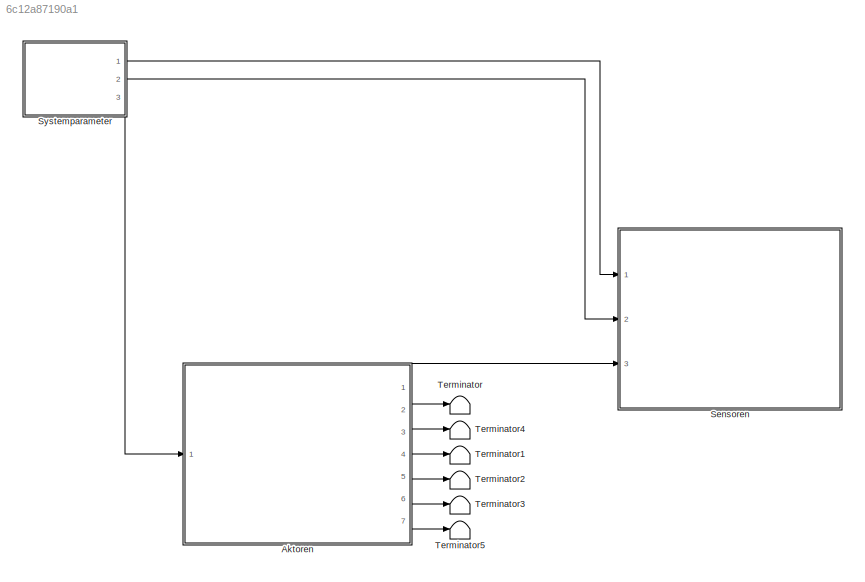
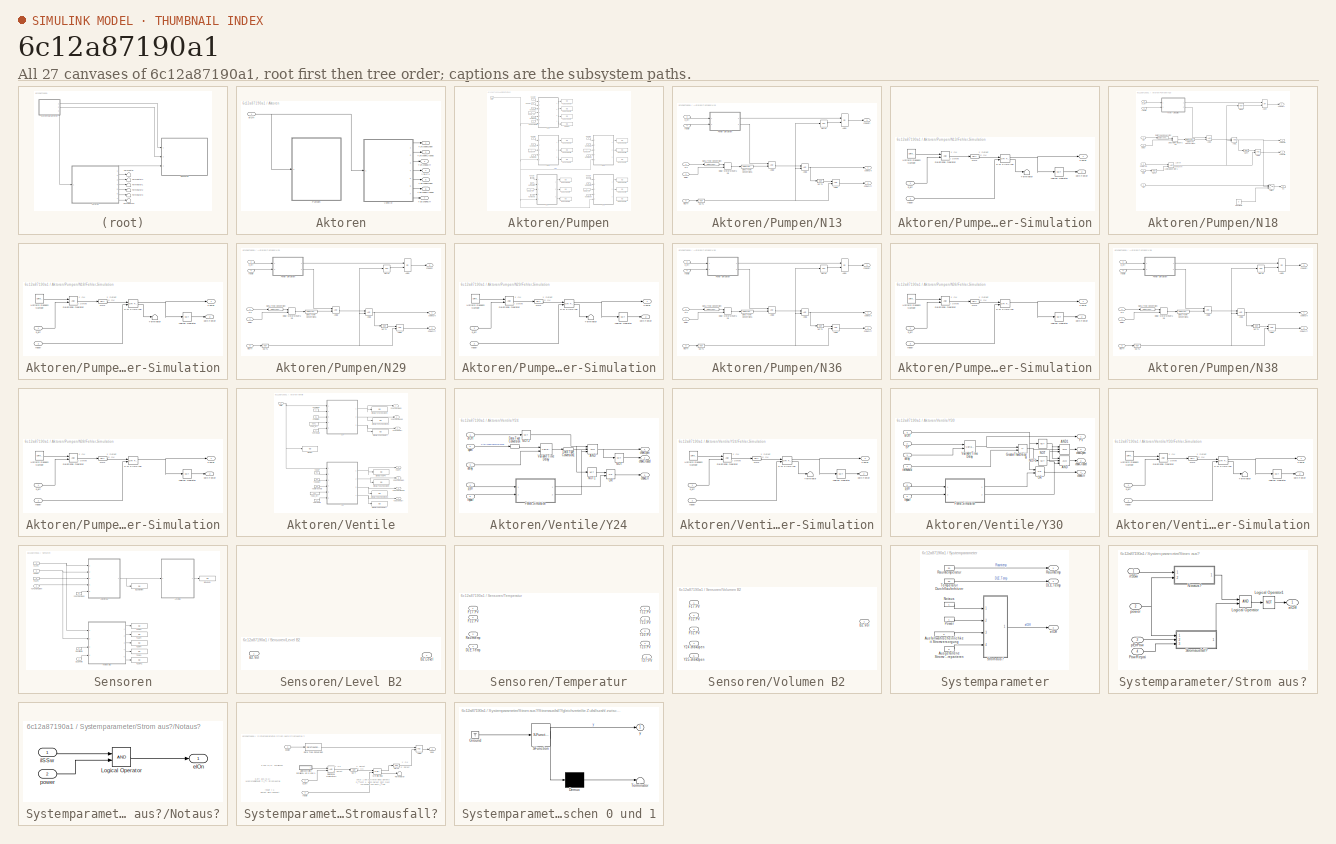
[diagram: thumbnail index - all 27 canvases of the model, root first then tree order]
MODEL slx_6c12a87190a1
KIND model
CONFIG AbsTol = auto
CONFIG EnableMultiTasking = on
CONFIG FixedStep = 1.0
CONFIG MaxStep = auto
CONFIG MinStep = auto
CONFIG RelTol = 1e-3
CONFIG SampleTimeConstraint = Unconstrained
CONFIG SolverName = ode5
CONFIG StartTime = 0.0
CONFIG StopTime = inf
BLOCK [SubSystem] Aktoren
  Ports = [1, 7]
  RequestExecContextInheritance = off
  TreatAsAtomicUnit = on
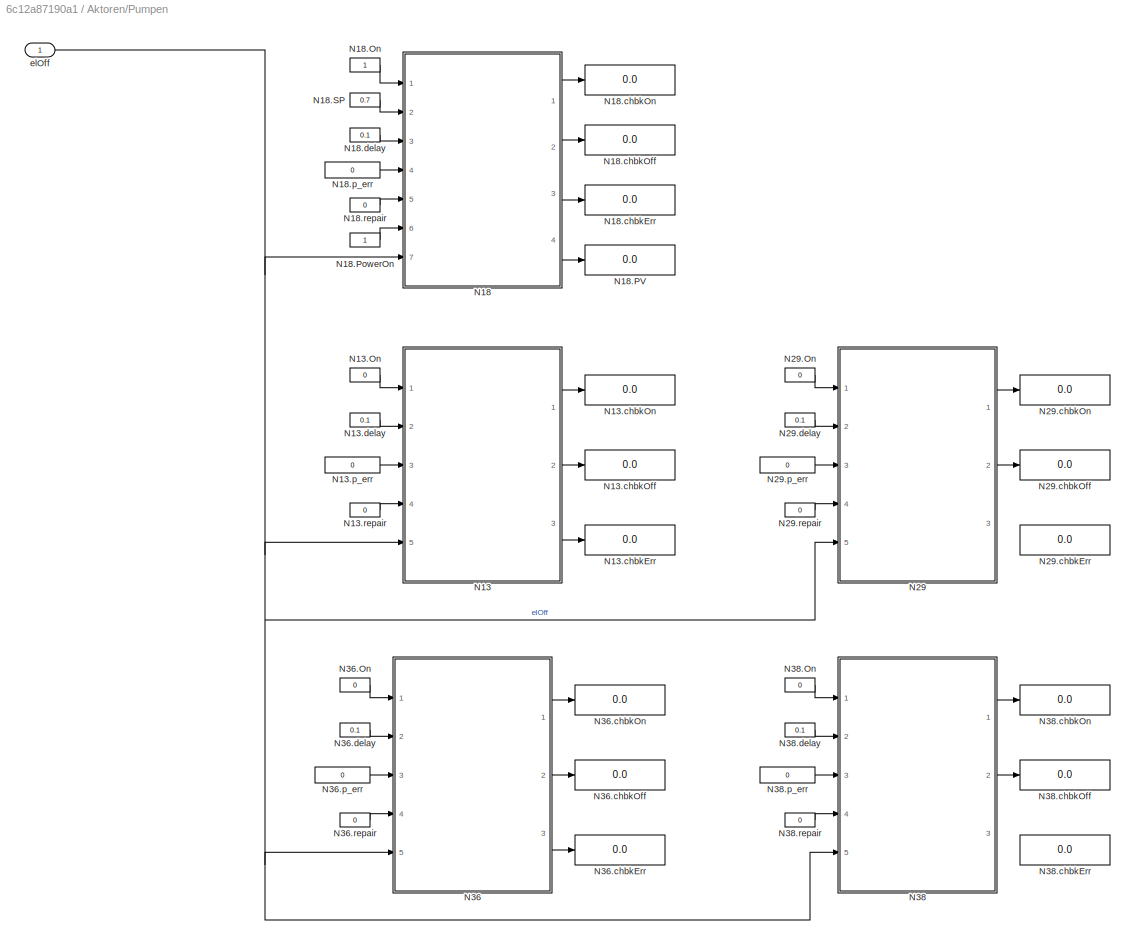
BLOCK [SubSystem] Aktoren/Pumpen
  Ports = [1]
  RequestExecContextInheritance = off
  TreatAsAtomicUnit = on
BLOCK [SubSystem] Aktoren/Pumpen/N13
  Ports = [5, 3]
  RequestExecContextInheritance = off
BLOCK [Constant] Aktoren/Pumpen/N13.On
  OutDataTypeStr = boolean
  Value = 0
BLOCK [Display] Aktoren/Pumpen/N13.chbkErr
  Decimation = 1
  Ports = [1]
BLOCK [Display] Aktoren/Pumpen/N13.chbkOff
  Decimation = 1
  Ports = [1]
BLOCK [Display] Aktoren/Pumpen/N13.chbkOn
  Decimation = 1
  Ports = [1]
BLOCK [Constant] Aktoren/Pumpen/N13.delay
  OutDataTypeStr = double
  Value = 0.1
BLOCK [Constant] Aktoren/Pumpen/N13.p_err
  OutDataTypeStr = double
  Value = 0
BLOCK [Constant] Aktoren/Pumpen/N13.repair
  OutDataTypeStr = boolean
  Value = 0
BLOCK [Logic] Aktoren/Pumpen/N13/AND1
  AllPortsSameDT = off
  OutDataTypeStr = boolean
  Ports = [2, 1]
BLOCK [Logic] Aktoren/Pumpen/N13/AND2
  AllPortsSameDT = off
  OutDataTypeStr = boolean
  Ports = [2, 1]
BLOCK [Logic] Aktoren/Pumpen/N13/AND3
  AllPortsSameDT = off
  OutDataTypeStr = boolean
  Ports = [2, 1]
BLOCK [Logic] Aktoren/Pumpen/N13/AND4
  AllPortsSameDT = off
  Operator = OR
  OutDataTypeStr = boolean
  Ports = [2, 1]
BLOCK [DataTypeConversion] Aktoren/Pumpen/N13/Data Type Conversion
  NameLocation = top
  OutDataTypeStr = double
  RndMeth = Floor
  SaturateOnIntegerOverflow = off
BLOCK [DataTypeConversion] Aktoren/Pumpen/N13/Data Type Conversion1
  OutDataTypeStr = boolean
  RndMeth = Floor
  SaturateOnIntegerOverflow = off
BLOCK [VariableTransportDelay] Aktoren/Pumpen/N13/Delay Motorsteuerung
  FixedBuffer = on
  MaximumDelay = 10
  Ports = [2, 1]
BLOCK [SubSystem] Aktoren/Pumpen/N13/Fehler-Simulation
  Ports = [2, 2]
  RequestExecContextInheritance = off
  TreatAsAtomicUnit = on
BLOCK [Outport] Aktoren/Pumpen/N13/Fehler-Simulation/Fehler
  OutDataTypeStr = boolean
BLOCK [Logic] Aktoren/Pumpen/N13/Fehler-Simulation/Logical Operator
  AllPortsSameDT = off
  Operator = NOT
  OutDataTypeStr = boolean
  Ports = [1, 1]
BLOCK [Logic] Aktoren/Pumpen/N13/Fehler-Simulation/NOT
  AllPortsSameDT = off
  Operator = NOT
  OutDataTypeStr = boolean
  Ports = [1, 1]
BLOCK [RelationalOperator] Aktoren/Pumpen/N13/Fehler-Simulation/Relational Operator
  InputSameDT = off
  OutDataTypeStr = boolean
  Ports = [2, 1]
BLOCK [Reference] Aktoren/Pumpen/N13/Fehler-Simulation/S-R Flip-Flop  REF=simulink_extras/Flip Flops/S-R
Flip-Flop
  Ports = [2, 2]
  SourceBlock = simulink_extras/Flip Flops/S-R\nFlip-Flop
  SourceProductBaseCode = SL
  SourceType = SRFlipFlop
BLOCK [Terminator] Aktoren/Pumpen/N13/Fehler-Simulation/Terminator
BLOCK [UniformRandomNumber] Aktoren/Pumpen/N13/Fehler-Simulation/Uniform Random Number
  Minimum = 0
  SampleTime = 1
  Seed = 1
BLOCK [Outport] Aktoren/Pumpen/N13/Fehler-Simulation/kein Fehler
  OutDataTypeStr = boolean
  Port = 2
BLOCK [Inport] Aktoren/Pumpen/N13/Fehler-Simulation/p_err
  OutDataTypeStr = double
BLOCK [Inport] Aktoren/Pumpen/N13/Fehler-Simulation/repair
  OutDataTypeStr = boolean
  Port = 2
BLOCK [Logic] Aktoren/Pumpen/N13/NOT1
  AllPortsSameDT = off
  Operator = NOT
  OutDataTypeStr = boolean
  Ports = [1, 1]
BLOCK [Logic] Aktoren/Pumpen/N13/NOT2
  AllPortsSameDT = off
  Operator = NOT
  OutDataTypeStr = boolean
  Ports = [1, 1]
BLOCK [Logic] Aktoren/Pumpen/N13/NOT4
  AllPortsSameDT = off
  Operator = NOT
  OutDataTypeStr = boolean
  Ports = [1, 1]
BLOCK [Inport] Aktoren/Pumpen/N13/On
  OutDataTypeStr = boolean
BLOCK [Outport] Aktoren/Pumpen/N13/chbkErr
  OutDataTypeStr = boolean
  Port = 3
BLOCK [Outport] Aktoren/Pumpen/N13/chbkOff
  OutDataTypeStr = boolean
  Port = 2
BLOCK [Outport] Aktoren/Pumpen/N13/chbkOn
  OutDataTypeStr = boolean
BLOCK [Inport] Aktoren/Pumpen/N13/delay
  OutDataTypeStr = double
  Port = 2
BLOCK [Inport] Aktoren/Pumpen/N13/elOff
  OutDataTypeStr = boolean
  Port = 5
BLOCK [Inport] Aktoren/Pumpen/N13/p_err
  OutDataTypeStr = double
  Port = 3
BLOCK [Inport] Aktoren/Pumpen/N13/repair
  OutDataTypeStr = boolean
  Port = 4
BLOCK [SubSystem] Aktoren/Pumpen/N18
  Ports = [7, 4]
  RequestExecContextInheritance = off
BLOCK [Constant] Aktoren/Pumpen/N18.On
  OutDataTypeStr = boolean
BLOCK [Display] Aktoren/Pumpen/N18.PV
  Decimation = 1
  Ports = [1]
BLOCK [Constant] Aktoren/Pumpen/N18.PowerOn
  OutDataTypeStr = boolean
BLOCK [Constant] Aktoren/Pumpen/N18.SP
  OutDataTypeStr = double
  Value = 0.7
BLOCK [Display] Aktoren/Pumpen/N18.chbkErr
  Decimation = 1
  Ports = [1]
BLOCK [Display] Aktoren/Pumpen/N18.chbkOff
  Decimation = 1
  Ports = [1]
BLOCK [Display] Aktoren/Pumpen/N18.chbkOn
  Decimation = 1
  Ports = [1]
BLOCK [Constant] Aktoren/Pumpen/N18.delay
  OutDataTypeStr = double
  Value = 0.1
BLOCK [Constant] Aktoren/Pumpen/N18.p_err
  OutDataTypeStr = double
  Value = 0
BLOCK [Constant] Aktoren/Pumpen/N18.repair
  OutDataTypeStr = boolean
  Value = 0
BLOCK [Logic] Aktoren/Pumpen/N18/AND1
  AllPortsSameDT = off
  OutDataTypeStr = boolean
  Ports = [2, 1]
BLOCK [Logic] Aktoren/Pumpen/N18/AND2
  AllPortsSameDT = off
  OutDataTypeStr = boolean
  Ports = [2, 1]
BLOCK [Logic] Aktoren/Pumpen/N18/AND3
  AllPortsSameDT = off
  OutDataTypeStr = boolean
  Ports = [2, 1]
BLOCK [Logic] Aktoren/Pumpen/N18/AND4
  AllPortsSameDT = off
  Operator = OR
  OutDataTypeStr = boolean
  Ports = [2, 1]
BLOCK [Constant] Aktoren/Pumpen/N18/Constant1
  Value = 0
BLOCK [DataTypeConversion] Aktoren/Pumpen/N18/Data Type Conversion
  NameLocation = top
  OutDataTypeStr = double
  RndMeth = Floor
  SaturateOnIntegerOverflow = off
BLOCK [DataTypeConversion] Aktoren/Pumpen/N18/Data Type Conversion1
  OutDataTypeStr = boolean
  RndMeth = Floor
  SaturateOnIntegerOverflow = off
BLOCK [VariableTransportDelay] Aktoren/Pumpen/N18/Delay Motorsteuerung
  FixedBuffer = on
  MaximumDelay = 10
  Ports = [2, 1]
BLOCK [SubSystem] Aktoren/Pumpen/N18/Fehler-Simulation
  Ports = [2, 2]
  RequestExecContextInheritance = off
  TreatAsAtomicUnit = on
BLOCK [Outport] Aktoren/Pumpen/N18/Fehler-Simulation/Fehler
  OutDataTypeStr = boolean
BLOCK [Logic] Aktoren/Pumpen/N18/Fehler-Simulation/Logical Operator
  AllPortsSameDT = off
  Operator = NOT
  OutDataTypeStr = boolean
  Ports = [1, 1]
BLOCK [Logic] Aktoren/Pumpen/N18/Fehler-Simulation/NOT
  AllPortsSameDT = off
  Operator = NOT
  OutDataTypeStr = boolean
  Ports = [1, 1]
BLOCK [RelationalOperator] Aktoren/Pumpen/N18/Fehler-Simulation/Relational Operator
  InputSameDT = off
  OutDataTypeStr = boolean
  Ports = [2, 1]
BLOCK [Reference] Aktoren/Pumpen/N18/Fehler-Simulation/S-R Flip-Flop  REF=simulink_extras/Flip Flops/S-R
Flip-Flop
  Ports = [2, 2]
  SourceBlock = simulink_extras/Flip Flops/S-R\nFlip-Flop
  SourceProductBaseCode = SL
  SourceType = SRFlipFlop
BLOCK [Terminator] Aktoren/Pumpen/N18/Fehler-Simulation/Terminator
BLOCK [UniformRandomNumber] Aktoren/Pumpen/N18/Fehler-Simulation/Uniform Random Number
  Minimum = 0
  SampleTime = 1
  Seed = 1
BLOCK [Outport] Aktoren/Pumpen/N18/Fehler-Simulation/kein Fehler
  OutDataTypeStr = boolean
  Port = 2
BLOCK [Inport] Aktoren/Pumpen/N18/Fehler-Simulation/p_err
  OutDataTypeStr = double
BLOCK [Inport] Aktoren/Pumpen/N18/Fehler-Simulation/repair
  OutDataTypeStr = boolean
  Port = 2
BLOCK [Logic] Aktoren/Pumpen/N18/Logical Operator1
  AllPortsSameDT = off
  OutDataTypeStr = boolean
  Ports = [2, 1]
BLOCK [Logic] Aktoren/Pumpen/N18/NOT1
  AllPortsSameDT = off
  Operator = NOT
  OutDataTypeStr = boolean
  Ports = [1, 1]
BLOCK [Logic] Aktoren/Pumpen/N18/NOT2
  AllPortsSameDT = off
  Operator = NOT
  OutDataTypeStr = boolean
  Ports = [1, 1]
BLOCK [Logic] Aktoren/Pumpen/N18/NOT4
  AllPortsSameDT = off
  Operator = NOT
  OutDataTypeStr = boolean
  Ports = [1, 1]
BLOCK [Inport] Aktoren/Pumpen/N18/On
  OutDataTypeStr = boolean
BLOCK [Outport] Aktoren/Pumpen/N18/PV
  OutDataTypeStr = double
  Port = 4
BLOCK [Inport] Aktoren/Pumpen/N18/PowerOn
  OutDataTypeStr = boolean
  Port = 6
BLOCK [Inport] Aktoren/Pumpen/N18/SP
  OutDataTypeStr = double
  Port = 2
BLOCK [Switch] Aktoren/Pumpen/N18/Switch
  InputSameDT = off
  SaturateOnIntegerOverflow = off
  Threshold = 0.5
BLOCK [Outport] Aktoren/Pumpen/N18/chbkErr
  OutDataTypeStr = boolean
  Port = 3
BLOCK [Outport] Aktoren/Pumpen/N18/chbkOff
  OutDataTypeStr = boolean
  Port = 2
BLOCK [Outport] Aktoren/Pumpen/N18/chbkOn
  OutDataTypeStr = boolean
BLOCK [Inport] Aktoren/Pumpen/N18/delay
  OutDataTypeStr = double
  Port = 3
BLOCK [Inport] Aktoren/Pumpen/N18/elOff
  OutDataTypeStr = boolean
  Port = 7
BLOCK [Inport] Aktoren/Pumpen/N18/p_err
  OutDataTypeStr = double
  Port = 4
BLOCK [Inport] Aktoren/Pumpen/N18/repair
  OutDataTypeStr = boolean
  Port = 5
BLOCK [SubSystem] Aktoren/Pumpen/N29
  Ports = [5, 3]
  RequestExecContextInheritance = off
BLOCK [Constant] Aktoren/Pumpen/N29.On
  OutDataTypeStr = boolean
  Value = 0
BLOCK [Display] Aktoren/Pumpen/N29.chbkErr
  Decimation = 1
  Ports = [1]
BLOCK [Display] Aktoren/Pumpen/N29.chbkOff
  Decimation = 1
  Ports = [1]
BLOCK [Display] Aktoren/Pumpen/N29.chbkOn
  Decimation = 1
  Ports = [1]
BLOCK [Constant] Aktoren/Pumpen/N29.delay
  OutDataTypeStr = double
  Value = 0.1
BLOCK [Constant] Aktoren/Pumpen/N29.p_err
  OutDataTypeStr = double
  Value = 0
BLOCK [Constant] Aktoren/Pumpen/N29.repair
  OutDataTypeStr = boolean
  Value = 0
BLOCK [Logic] Aktoren/Pumpen/N29/AND1
  AllPortsSameDT = off
  OutDataTypeStr = boolean
  Ports = [2, 1]
BLOCK [Logic] Aktoren/Pumpen/N29/AND2
  AllPortsSameDT = off
  OutDataTypeStr = boolean
  Ports = [2, 1]
BLOCK [Logic] Aktoren/Pumpen/N29/AND3
  AllPortsSameDT = off
  OutDataTypeStr = boolean
  Ports = [2, 1]
BLOCK [Logic] Aktoren/Pumpen/N29/AND4
  AllPortsSameDT = off
  Operator = OR
  OutDataTypeStr = boolean
  Ports = [2, 1]
BLOCK [DataTypeConversion] Aktoren/Pumpen/N29/Data Type Conversion
  NameLocation = top
  OutDataTypeStr = double
  RndMeth = Floor
  SaturateOnIntegerOverflow = off
BLOCK [DataTypeConversion] Aktoren/Pumpen/N29/Data Type Conversion1
  OutDataTypeStr = boolean
  RndMeth = Floor
  SaturateOnIntegerOverflow = off
BLOCK [VariableTransportDelay] Aktoren/Pumpen/N29/Delay Motorsteuerung
  FixedBuffer = on
  MaximumDelay = 10
  Ports = [2, 1]
BLOCK [SubSystem] Aktoren/Pumpen/N29/Fehler-Simulation
  Ports = [2, 2]
  RequestExecContextInheritance = off
  TreatAsAtomicUnit = on
BLOCK [Outport] Aktoren/Pumpen/N29/Fehler-Simulation/Fehler
  OutDataTypeStr = boolean
BLOCK [Logic] Aktoren/Pumpen/N29/Fehler-Simulation/Logical Operator
  AllPortsSameDT = off
  Operator = NOT
  OutDataTypeStr = boolean
  Ports = [1, 1]
BLOCK [Logic] Aktoren/Pumpen/N29/Fehler-Simulation/NOT
  AllPortsSameDT = off
  Operator = NOT
  OutDataTypeStr = boolean
  Ports = [1, 1]
BLOCK [RelationalOperator] Aktoren/Pumpen/N29/Fehler-Simulation/Relational Operator
  InputSameDT = off
  OutDataTypeStr = boolean
  Ports = [2, 1]
BLOCK [Reference] Aktoren/Pumpen/N29/Fehler-Simulation/S-R Flip-Flop  REF=simulink_extras/Flip Flops/S-R
Flip-Flop
  Ports = [2, 2]
  SourceBlock = simulink_extras/Flip Flops/S-R\nFlip-Flop
  SourceProductBaseCode = SL
  SourceType = SRFlipFlop
BLOCK [Terminator] Aktoren/Pumpen/N29/Fehler-Simulation/Terminator
BLOCK [UniformRandomNumber] Aktoren/Pumpen/N29/Fehler-Simulation/Uniform Random Number
  Minimum = 0
  SampleTime = 1
  Seed = 1
BLOCK [Outport] Aktoren/Pumpen/N29/Fehler-Simulation/kein Fehler
  OutDataTypeStr = boolean
  Port = 2
BLOCK [Inport] Aktoren/Pumpen/N29/Fehler-Simulation/p_err
  OutDataTypeStr = double
BLOCK [Inport] Aktoren/Pumpen/N29/Fehler-Simulation/repair
  OutDataTypeStr = boolean
  Port = 2
BLOCK [Logic] Aktoren/Pumpen/N29/NOT1
  AllPortsSameDT = off
  Operator = NOT
  OutDataTypeStr = boolean
  Ports = [1, 1]
BLOCK [Logic] Aktoren/Pumpen/N29/NOT2
  AllPortsSameDT = off
  Operator = NOT
  OutDataTypeStr = boolean
  Ports = [1, 1]
BLOCK [Logic] Aktoren/Pumpen/N29/NOT4
  AllPortsSameDT = off
  Operator = NOT
  OutDataTypeStr = boolean
  Ports = [1, 1]
BLOCK [Inport] Aktoren/Pumpen/N29/On
  OutDataTypeStr = boolean
BLOCK [Outport] Aktoren/Pumpen/N29/chbkErr
  OutDataTypeStr = boolean
  Port = 3
BLOCK [Outport] Aktoren/Pumpen/N29/chbkOff
  OutDataTypeStr = boolean
  Port = 2
BLOCK [Outport] Aktoren/Pumpen/N29/chbkOn
  OutDataTypeStr = boolean
BLOCK [Inport] Aktoren/Pumpen/N29/delay
  OutDataTypeStr = double
  Port = 2
BLOCK [Inport] Aktoren/Pumpen/N29/elOff
  OutDataTypeStr = boolean
  Port = 5
BLOCK [Inport] Aktoren/Pumpen/N29/p_err
  OutDataTypeStr = double
  Port = 3
BLOCK [Inport] Aktoren/Pumpen/N29/repair
  OutDataTypeStr = boolean
  Port = 4
BLOCK [SubSystem] Aktoren/Pumpen/N36
  Ports = [5, 3]
  RequestExecContextInheritance = off
BLOCK [Constant] Aktoren/Pumpen/N36.On
  OutDataTypeStr = boolean
  Value = 0
BLOCK [Display] Aktoren/Pumpen/N36.chbkErr
  Decimation = 1
  Ports = [1]
BLOCK [Display] Aktoren/Pumpen/N36.chbkOff
  Decimation = 1
  Ports = [1]
BLOCK [Display] Aktoren/Pumpen/N36.chbkOn
  Decimation = 1
  Ports = [1]
BLOCK [Constant] Aktoren/Pumpen/N36.delay
  OutDataTypeStr = double
  Value = 0.1
BLOCK [Constant] Aktoren/Pumpen/N36.p_err
  OutDataTypeStr = double
  Value = 0
BLOCK [Constant] Aktoren/Pumpen/N36.repair
  OutDataTypeStr = boolean
  Value = 0
BLOCK [Logic] Aktoren/Pumpen/N36/AND1
  AllPortsSameDT = off
  OutDataTypeStr = boolean
  Ports = [2, 1]
BLOCK [Logic] Aktoren/Pumpen/N36/AND2
  AllPortsSameDT = off
  OutDataTypeStr = boolean
  Ports = [2, 1]
BLOCK [Logic] Aktoren/Pumpen/N36/AND3
  AllPortsSameDT = off
  OutDataTypeStr = boolean
  Ports = [2, 1]
BLOCK [Logic] Aktoren/Pumpen/N36/AND4
  AllPortsSameDT = off
  Operator = OR
  OutDataTypeStr = boolean
  Ports = [2, 1]
BLOCK [DataTypeConversion] Aktoren/Pumpen/N36/Data Type Conversion
  NameLocation = top
  OutDataTypeStr = double
  RndMeth = Floor
  SaturateOnIntegerOverflow = off
BLOCK [DataTypeConversion] Aktoren/Pumpen/N36/Data Type Conversion1
  OutDataTypeStr = boolean
  RndMeth = Floor
  SaturateOnIntegerOverflow = off
BLOCK [VariableTransportDelay] Aktoren/Pumpen/N36/Delay Motorsteuerung
  FixedBuffer = on
  MaximumDelay = 10
  Ports = [2, 1]
BLOCK [SubSystem] Aktoren/Pumpen/N36/Fehler-Simulation
  Ports = [2, 2]
  RequestExecContextInheritance = off
  TreatAsAtomicUnit = on
BLOCK [Outport] Aktoren/Pumpen/N36/Fehler-Simulation/Fehler
  OutDataTypeStr = boolean
BLOCK [Logic] Aktoren/Pumpen/N36/Fehler-Simulation/Logical Operator
  AllPortsSameDT = off
  Operator = NOT
  OutDataTypeStr = boolean
  Ports = [1, 1]
BLOCK [Logic] Aktoren/Pumpen/N36/Fehler-Simulation/NOT
  AllPortsSameDT = off
  Operator = NOT
  OutDataTypeStr = boolean
  Ports = [1, 1]
BLOCK [RelationalOperator] Aktoren/Pumpen/N36/Fehler-Simulation/Relational Operator
  InputSameDT = off
  OutDataTypeStr = boolean
  Ports = [2, 1]
BLOCK [Reference] Aktoren/Pumpen/N36/Fehler-Simulation/S-R Flip-Flop  REF=simulink_extras/Flip Flops/S-R
Flip-Flop
  Ports = [2, 2]
  SourceBlock = simulink_extras/Flip Flops/S-R\nFlip-Flop
  SourceProductBaseCode = SL
  SourceType = SRFlipFlop
BLOCK [UniformRandomNumber] Aktoren/Pumpen/N36/Fehler-Simulation/Uniform Random Number
  Minimum = 0
  SampleTime = 1
  Seed = 1
BLOCK [Outport] Aktoren/Pumpen/N36/Fehler-Simulation/kein Fehler
  OutDataTypeStr = boolean
  Port = 2
BLOCK [Inport] Aktoren/Pumpen/N36/Fehler-Simulation/p_err
  OutDataTypeStr = double
BLOCK [Inport] Aktoren/Pumpen/N36/Fehler-Simulation/repair
  OutDataTypeStr = boolean
  Port = 2
BLOCK [Logic] Aktoren/Pumpen/N36/NOT1
  AllPortsSameDT = off
  Operator = NOT
  OutDataTypeStr = boolean
  Ports = [1, 1]
BLOCK [Logic] Aktoren/Pumpen/N36/NOT2
  AllPortsSameDT = off
  Operator = NOT
  OutDataTypeStr = boolean
  Ports = [1, 1]
BLOCK [Logic] Aktoren/Pumpen/N36/NOT4
  AllPortsSameDT = off
  Operator = NOT
  OutDataTypeStr = boolean
  Ports = [1, 1]
BLOCK [Inport] Aktoren/Pumpen/N36/On
  OutDataTypeStr = boolean
BLOCK [Outport] Aktoren/Pumpen/N36/chbkErr
  OutDataTypeStr = boolean
  Port = 3
BLOCK [Outport] Aktoren/Pumpen/N36/chbkOff
  OutDataTypeStr = boolean
  Port = 2
BLOCK [Outport] Aktoren/Pumpen/N36/chbkOn
  OutDataTypeStr = boolean
BLOCK [Inport] Aktoren/Pumpen/N36/delay
  OutDataTypeStr = double
  Port = 2
BLOCK [Inport] Aktoren/Pumpen/N36/elOff
  OutDataTypeStr = boolean
  Port = 5
BLOCK [Inport] Aktoren/Pumpen/N36/p_err
  OutDataTypeStr = double
  Port = 3
BLOCK [Inport] Aktoren/Pumpen/N36/repair
  OutDataTypeStr = boolean
  Port = 4
BLOCK [SubSystem] Aktoren/Pumpen/N38
  Ports = [5, 3]
  RequestExecContextInheritance = off
BLOCK [Constant] Aktoren/Pumpen/N38.On
  OutDataTypeStr = boolean
  Value = 0
BLOCK [Display] Aktoren/Pumpen/N38.chbkErr
  Decimation = 1
  Ports = [1]
BLOCK [Display] Aktoren/Pumpen/N38.chbkOff
  Decimation = 1
  Ports = [1]
BLOCK [Display] Aktoren/Pumpen/N38.chbkOn
  Decimation = 1
  Ports = [1]
BLOCK [Constant] Aktoren/Pumpen/N38.delay
  OutDataTypeStr = double
  Value = 0.1
BLOCK [Constant] Aktoren/Pumpen/N38.p_err
  OutDataTypeStr = double
  Value = 0
BLOCK [Constant] Aktoren/Pumpen/N38.repair
  OutDataTypeStr = boolean
  Value = 0
BLOCK [Logic] Aktoren/Pumpen/N38/AND1
  AllPortsSameDT = off
  OutDataTypeStr = boolean
  Ports = [2, 1]
BLOCK [Logic] Aktoren/Pumpen/N38/AND2
  AllPortsSameDT = off
  OutDataTypeStr = boolean
  Ports = [2, 1]
BLOCK [Logic] Aktoren/Pumpen/N38/AND3
  AllPortsSameDT = off
  OutDataTypeStr = boolean
  Ports = [2, 1]
BLOCK [Logic] Aktoren/Pumpen/N38/AND4
  AllPortsSameDT = off
  Operator = OR
  OutDataTypeStr = boolean
  Ports = [2, 1]
BLOCK [DataTypeConversion] Aktoren/Pumpen/N38/Data Type Conversion
  NameLocation = top
  OutDataTypeStr = double
  RndMeth = Floor
  SaturateOnIntegerOverflow = off
BLOCK [DataTypeConversion] Aktoren/Pumpen/N38/Data Type Conversion1
  OutDataTypeStr = boolean
  RndMeth = Floor
  SaturateOnIntegerOverflow = off
BLOCK [VariableTransportDelay] Aktoren/Pumpen/N38/Delay Motorsteuerung
  FixedBuffer = on
  MaximumDelay = 10
  Ports = [2, 1]
BLOCK [SubSystem] Aktoren/Pumpen/N38/Fehler-Simulation
  Ports = [2, 2]
  RequestExecContextInheritance = off
  TreatAsAtomicUnit = on
BLOCK [Outport] Aktoren/Pumpen/N38/Fehler-Simulation/Fehler
  OutDataTypeStr = boolean
BLOCK [Logic] Aktoren/Pumpen/N38/Fehler-Simulation/Logical Operator
  AllPortsSameDT = off
  Operator = NOT
  OutDataTypeStr = boolean
  Ports = [1, 1]
BLOCK [Logic] Aktoren/Pumpen/N38/Fehler-Simulation/NOT
  AllPortsSameDT = off
  Operator = NOT
  OutDataTypeStr = boolean
  Ports = [1, 1]
BLOCK [RelationalOperator] Aktoren/Pumpen/N38/Fehler-Simulation/Relational Operator
  InputSameDT = off
  OutDataTypeStr = boolean
  Ports = [2, 1]
BLOCK [Reference] Aktoren/Pumpen/N38/Fehler-Simulation/S-R Flip-Flop  REF=simulink_extras/Flip Flops/S-R
Flip-Flop
  Ports = [2, 2]
  SourceBlock = simulink_extras/Flip Flops/S-R\nFlip-Flop
  SourceProductBaseCode = SL
  SourceType = SRFlipFlop
BLOCK [UniformRandomNumber] Aktoren/Pumpen/N38/Fehler-Simulation/Uniform Random Number
  Minimum = 0
  SampleTime = 1
  Seed = 1
BLOCK [Outport] Aktoren/Pumpen/N38/Fehler-Simulation/kein Fehler
  OutDataTypeStr = boolean
  Port = 2
BLOCK [Inport] Aktoren/Pumpen/N38/Fehler-Simulation/p_err
  OutDataTypeStr = double
BLOCK [Inport] Aktoren/Pumpen/N38/Fehler-Simulation/repair
  OutDataTypeStr = boolean
  Port = 2
BLOCK [Logic] Aktoren/Pumpen/N38/NOT1
  AllPortsSameDT = off
  Operator = NOT
  OutDataTypeStr = boolean
  Ports = [1, 1]
BLOCK [Logic] Aktoren/Pumpen/N38/NOT2
  AllPortsSameDT = off
  Operator = NOT
  OutDataTypeStr = boolean
  Ports = [1, 1]
BLOCK [Logic] Aktoren/Pumpen/N38/NOT4
  AllPortsSameDT = off
  Operator = NOT
  OutDataTypeStr = boolean
  Ports = [1, 1]
BLOCK [Inport] Aktoren/Pumpen/N38/On
  OutDataTypeStr = boolean
BLOCK [Outport] Aktoren/Pumpen/N38/chbkErr
  OutDataTypeStr = boolean
  Port = 3
BLOCK [Outport] Aktoren/Pumpen/N38/chbkOff
  OutDataTypeStr = boolean
  Port = 2
BLOCK [Outport] Aktoren/Pumpen/N38/chbkOn
  OutDataTypeStr = boolean
BLOCK [Inport] Aktoren/Pumpen/N38/delay
  OutDataTypeStr = double
  Port = 2
BLOCK [Inport] Aktoren/Pumpen/N38/elOff
  OutDataTypeStr = boolean
  Port = 5
BLOCK [Inport] Aktoren/Pumpen/N38/p_err
  OutDataTypeStr = double
  Port = 3
BLOCK [Inport] Aktoren/Pumpen/N38/repair
  OutDataTypeStr = boolean
  Port = 4
BLOCK [Inport] Aktoren/Pumpen/elOff
  OutDataTypeStr = boolean
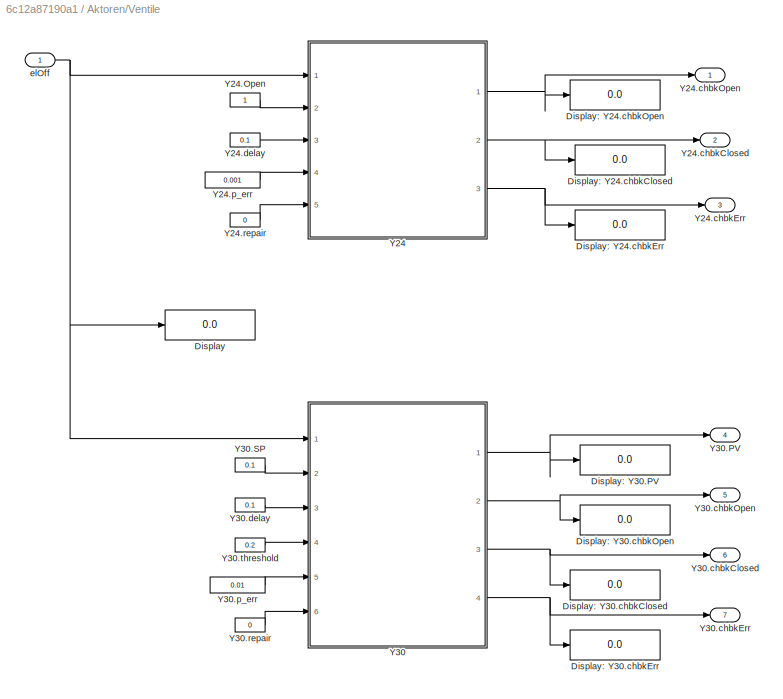
BLOCK [SubSystem] Aktoren/Ventile
  Ports = [1, 7]
  RequestExecContextInheritance = off
  TreatAsAtomicUnit = on
BLOCK [Display] Aktoren/Ventile/Display
  Decimation = 1
  Ports = [1]
BLOCK [Display] Aktoren/Ventile/Display: Y24.chbkClosed
  Decimation = 1
  Ports = [1]
BLOCK [Display] Aktoren/Ventile/Display: Y24.chbkErr
  Decimation = 1
  Ports = [1]
BLOCK [Display] Aktoren/Ventile/Display: Y24.chbkOpen
  Decimation = 1
  Ports = [1]
BLOCK [Display] Aktoren/Ventile/Display: Y30.PV
  Decimation = 1
  Ports = [1]
BLOCK [Display] Aktoren/Ventile/Display: Y30.chbkClosed
  Decimation = 1
  Ports = [1]
BLOCK [Display] Aktoren/Ventile/Display: Y30.chbkErr
  Decimation = 1
  Ports = [1]
BLOCK [Display] Aktoren/Ventile/Display: Y30.chbkOpen
  Decimation = 1
  Ports = [1]
BLOCK [SubSystem] Aktoren/Ventile/Y24
  Ports = [5, 3]
  RequestExecContextInheritance = off
BLOCK [Constant] Aktoren/Ventile/Y24.Open
  OutDataTypeStr = boolean
BLOCK [Outport] Aktoren/Ventile/Y24.chbkClosed
  OutDataTypeStr = boolean
  Port = 2
BLOCK [Outport] Aktoren/Ventile/Y24.chbkErr
  OutDataTypeStr = boolean
  Port = 3
BLOCK [Outport] Aktoren/Ventile/Y24.chbkOpen
  OutDataTypeStr = boolean
BLOCK [Constant] Aktoren/Ventile/Y24.delay
  OutDataTypeStr = double
  Value = 0.1
BLOCK [Constant] Aktoren/Ventile/Y24.p_err
  OutDataTypeStr = double
  Value = 0.001
BLOCK [Constant] Aktoren/Ventile/Y24.repair
  OutDataTypeStr = boolean
  Value = 0
BLOCK [Logic] Aktoren/Ventile/Y24/AND
  AllPortsSameDT = off
  Inputs = 3
  OutDataTypeStr = boolean
  Ports = [3, 1]
BLOCK [DataTypeConversion] Aktoren/Ventile/Y24/Data Type Conversion
  OutDataTypeStr = double
  RndMeth = Floor
  SaturateOnIntegerOverflow = off
BLOCK [DataTypeConversion] Aktoren/Ventile/Y24/Data Type Conversion1
  OutDataTypeStr = boolean
  RndMeth = Floor
  SaturateOnIntegerOverflow = off
BLOCK [SubSystem] Aktoren/Ventile/Y24/Fehler-Simulation
  Ports = [2, 2]
  RequestExecContextInheritance = off
  TreatAsAtomicUnit = on
BLOCK [Outport] Aktoren/Ventile/Y24/Fehler-Simulation/Fehler
  OutDataTypeStr = boolean
BLOCK [Logic] Aktoren/Ventile/Y24/Fehler-Simulation/Logical Operator
  AllPortsSameDT = off
  Operator = NOT
  OutDataTypeStr = boolean
  Ports = [1, 1]
BLOCK [Logic] Aktoren/Ventile/Y24/Fehler-Simulation/NOT
  AllPortsSameDT = off
  Operator = NOT
  OutDataTypeStr = boolean
  Ports = [1, 1]
BLOCK [RelationalOperator] Aktoren/Ventile/Y24/Fehler-Simulation/Relational Operator
  InputSameDT = off
  OutDataTypeStr = boolean
  Ports = [2, 1]
BLOCK [Reference] Aktoren/Ventile/Y24/Fehler-Simulation/S-R Flip-Flop  REF=simulink_extras/Flip Flops/S-R
Flip-Flop
  Ports = [2, 2]
  SourceBlock = simulink_extras/Flip Flops/S-R\nFlip-Flop
  SourceProductBaseCode = SL
  SourceType = SRFlipFlop
BLOCK [Terminator] Aktoren/Ventile/Y24/Fehler-Simulation/Terminator
BLOCK [UniformRandomNumber] Aktoren/Ventile/Y24/Fehler-Simulation/Uniform Random Number
  Minimum = 0
  SampleTime = 1
  Seed = 1
BLOCK [Outport] Aktoren/Ventile/Y24/Fehler-Simulation/kein Fehler
  OutDataTypeStr = boolean
  Port = 2
BLOCK [Inport] Aktoren/Ventile/Y24/Fehler-Simulation/p_err
  OutDataTypeStr = double
BLOCK [Inport] Aktoren/Ventile/Y24/Fehler-Simulation/repair
  OutDataTypeStr = boolean
  Port = 2
BLOCK [Logic] Aktoren/Ventile/Y24/NOT
  AllPortsSameDT = off
  Operator = NOT
  OutDataTypeStr = boolean
  Ports = [1, 1]
BLOCK [Logic] Aktoren/Ventile/Y24/NOT1
  AllPortsSameDT = off
  Operator = NOT
  OutDataTypeStr = boolean
  Ports = [1, 1]
BLOCK [Logic] Aktoren/Ventile/Y24/NOT2
  AllPortsSameDT = off
  Operator = NOT
  OutDataTypeStr = boolean
  Ports = [1, 1]
BLOCK [Logic] Aktoren/Ventile/Y24/OR
  AllPortsSameDT = off
  Operator = OR
  OutDataTypeStr = boolean
  Ports = [2, 1]
BLOCK [VariableTransportDelay] Aktoren/Ventile/Y24/Variable Time Delay
  MaximumDelay = 10
  Ports = [2, 1]
  VariableDelayType = Variable transport delay
BLOCK [Outport] Aktoren/Ventile/Y24/chbkClosed
  OutDataTypeStr = boolean
  Port = 2
BLOCK [Outport] Aktoren/Ventile/Y24/chbkErr
  OutDataTypeStr = boolean
  Port = 3
BLOCK [Outport] Aktoren/Ventile/Y24/chbkOpen
  OutDataTypeStr = boolean
BLOCK [Inport] Aktoren/Ventile/Y24/delay
  OutDataTypeStr = double
  Port = 3
BLOCK [Inport] Aktoren/Ventile/Y24/elOff
  OutDataTypeStr = boolean
BLOCK [Inport] Aktoren/Ventile/Y24/open
  OutDataTypeStr = boolean
  Port = 2
BLOCK [Inport] Aktoren/Ventile/Y24/p_err
  OutDataTypeStr = double
  Port = 4
BLOCK [Inport] Aktoren/Ventile/Y24/repair
  OutDataTypeStr = boolean
  Port = 5
BLOCK [SubSystem] Aktoren/Ventile/Y30
  Ports = [6, 4]
  RequestExecContextInheritance = off
BLOCK [Outport] Aktoren/Ventile/Y30.PV
  OutDataTypeStr = double
  Port = 4
BLOCK [Constant] Aktoren/Ventile/Y30.SP
  OutDataTypeStr = double
  Value = 0.1
BLOCK [Outport] Aktoren/Ventile/Y30.chbkClosed
  OutDataTypeStr = boolean
  Port = 6
BLOCK [Outport] Aktoren/Ventile/Y30.chbkErr
  OutDataTypeStr = boolean
  Port = 7
BLOCK [Outport] Aktoren/Ventile/Y30.chbkOpen
  OutDataTypeStr = boolean
  Port = 5
BLOCK [Constant] Aktoren/Ventile/Y30.delay
  OutDataTypeStr = double
  Value = 0.1
BLOCK [Constant] Aktoren/Ventile/Y30.p_err
  OutDataTypeStr = double
  Value = 0.01
BLOCK [Constant] Aktoren/Ventile/Y30.repair
  OutDataTypeStr = boolean
  Value = 0
BLOCK [Constant] Aktoren/Ventile/Y30.threshold
  OutDataTypeStr = double
  Value = 0.2
BLOCK [Logic] Aktoren/Ventile/Y30/AND
  AllPortsSameDT = off
  Inputs = 3
  OutDataTypeStr = boolean
  Ports = [3, 1]
BLOCK [Logic] Aktoren/Ventile/Y30/AND1
  AllPortsSameDT = off
  Inputs = 3
  OutDataTypeStr = boolean
  Ports = [3, 1]
BLOCK [SubSystem] Aktoren/Ventile/Y30/Fehler-Simulation
  Ports = [2, 2]
  RequestExecContextInheritance = off
  TreatAsAtomicUnit = on
BLOCK [Outport] Aktoren/Ventile/Y30/Fehler-Simulation/Fehler
  OutDataTypeStr = boolean
BLOCK [Logic] Aktoren/Ventile/Y30/Fehler-Simulation/Logical Operator
  AllPortsSameDT = off
  Operator = NOT
  OutDataTypeStr = boolean
  Ports = [1, 1]
BLOCK [Logic] Aktoren/Ventile/Y30/Fehler-Simulation/NOT
  AllPortsSameDT = off
  Operator = NOT
  OutDataTypeStr = boolean
  Ports = [1, 1]
BLOCK [RelationalOperator] Aktoren/Ventile/Y30/Fehler-Simulation/Relational Operator
  InputSameDT = off
  OutDataTypeStr = boolean
  Ports = [2, 1]
BLOCK [Reference] Aktoren/Ventile/Y30/Fehler-Simulation/S-R Flip-Flop  REF=simulink_extras/Flip Flops/S-R
Flip-Flop
  Ports = [2, 2]
  SourceBlock = simulink_extras/Flip Flops/S-R\nFlip-Flop
  SourceProductBaseCode = SL
  SourceType = SRFlipFlop
BLOCK [Terminator] Aktoren/Ventile/Y30/Fehler-Simulation/Terminator
BLOCK [UniformRandomNumber] Aktoren/Ventile/Y30/Fehler-Simulation/Uniform Random Number
  Minimum = 0
  SampleTime = 1
  Seed = 1
BLOCK [Outport] Aktoren/Ventile/Y30/Fehler-Simulation/kein Fehler
  OutDataTypeStr = boolean
  Port = 2
BLOCK [Inport] Aktoren/Ventile/Y30/Fehler-Simulation/p_err
  OutDataTypeStr = double
BLOCK [Inport] Aktoren/Ventile/Y30/Fehler-Simulation/repair
  OutDataTypeStr = boolean
  Port = 2
BLOCK [RelationalOperator] Aktoren/Ventile/Y30/GreaterThanOrEqual
  InputSameDT = off
  Operator = <=
  OutDataTypeStr = boolean
  Ports = [2, 1]
  RndMeth = Simplest
BLOCK [Logic] Aktoren/Ventile/Y30/NOT
  AllPortsSameDT = off
  Operator = NOT
  OutDataTypeStr = boolean
  Ports = [1, 1]
BLOCK [Logic] Aktoren/Ventile/Y30/NOT1
  AllPortsSameDT = off
  Operator = NOT
  OutDataTypeStr = boolean
  Ports = [1, 1]
BLOCK [Logic] Aktoren/Ventile/Y30/OR
  AllPortsSameDT = off
  Operator = OR
  OutDataTypeStr = boolean
  Ports = [2, 1]
BLOCK [Outport] Aktoren/Ventile/Y30/PV
  OutDataTypeStr = double
BLOCK [Inport] Aktoren/Ventile/Y30/SP
  OutDataTypeStr = double
  Port = 2
BLOCK [VariableTransportDelay] Aktoren/Ventile/Y30/Variable Time Delay
  MaximumDelay = 10
  Ports = [2, 1]
BLOCK [Outport] Aktoren/Ventile/Y30/chbkClosed
  OutDataTypeStr = boolean
  Port = 3
BLOCK [Outport] Aktoren/Ventile/Y30/chbkErr
  OutDataTypeStr = boolean
  Port = 4
BLOCK [Outport] Aktoren/Ventile/Y30/chbkOpen
  OutDataTypeStr = boolean
  Port = 2
BLOCK [Inport] Aktoren/Ventile/Y30/delay
  OutDataTypeStr = double
  Port = 3
BLOCK [Inport] Aktoren/Ventile/Y30/elOff
  OutDataTypeStr = boolean
BLOCK [Inport] Aktoren/Ventile/Y30/p_err
  OutDataTypeStr = double
  Port = 5
BLOCK [Inport] Aktoren/Ventile/Y30/repair
  OutDataTypeStr = boolean
  Port = 6
BLOCK [Inport] Aktoren/Ventile/Y30/threshold
  OutDataTypeStr = double
  Port = 4
BLOCK [Inport] Aktoren/Ventile/elOff
  OutDataTypeStr = boolean
BLOCK [Outport] Aktoren/Y24.chbkClosed
  OutDataTypeStr = boolean
  Port = 2
BLOCK [Outport] Aktoren/Y24.chbkErr
  OutDataTypeStr = boolean
  Port = 3
BLOCK [Outport] Aktoren/Y24.chbkOpen
  OutDataTypeStr = boolean
BLOCK [Outport] Aktoren/Y30.PV
  OutDataTypeStr = double
  Port = 4
BLOCK [Outport] Aktoren/Y30.chbkClosed
  OutDataTypeStr = boolean
  Port = 6
BLOCK [Outport] Aktoren/Y30.chbkErr
  OutDataTypeStr = boolean
  Port = 7
BLOCK [Outport] Aktoren/Y30.chbkOpen
  OutDataTypeStr = boolean
  Port = 5
BLOCK [Inport] Aktoren/elOff
  OutDataTypeStr = boolean
BLOCK [SubSystem] Sensoren
  Ports = [3]
  RequestExecContextInheritance = off
  TreatAsAtomicUnit = on
BLOCK [Display] Sensoren/B2.Volumen
  Decimation = 1
  Ports = [1]
BLOCK [Display] Sensoren/B3.Level
  Decimation = 1
  Ports = [1]
BLOCK [Inport] Sensoren/DLE.Temp
  OutDataTypeStr = double
  Port = 2
BLOCK [Constant] Sensoren/F17.PV
  OutDataTypeStr = double
  Value = 0
BLOCK [Constant] Sensoren/F22.PV
  OutDataTypeStr = double
  Value = 0
BLOCK [Constant] Sensoren/F31.PV
  OutDataTypeStr = double
  Value = 0
BLOCK [SubSystem] Sensoren/Level B2
  Ports = [1, 1]
  RequestExecContextInheritance = off
BLOCK [Outport] Sensoren/Level B2/B2.Level
BLOCK [Inport] Sensoren/Level B2/B2.Vol
BLOCK [Inport] Sensoren/Raumtemp
  OutDataTypeStr = double
BLOCK [Display] Sensoren/T12.PV
  Decimation = 1
  Ports = [1]
BLOCK [Display] Sensoren/T15.PV
  Decimation = 1
  Ports = [1]
BLOCK [Display] Sensoren/T20.PV
  Decimation = 1
  Ports = [1]
BLOCK [Display] Sensoren/T23.PV
  Decimation = 1
  Ports = [1]
BLOCK [Display] Sensoren/T23.PV1
  Decimation = 1
  Ports = [1]
BLOCK [SubSystem] Sensoren/Temperatur
  Ports = [4, 5]
  RequestExecContextInheritance = off
BLOCK [Inport] Sensoren/Temperatur/DLE.Temp
  OutDataTypeStr = double
  Port = 4
BLOCK [Inport] Sensoren/Temperatur/F17.PV
  OutDataTypeStr = double
BLOCK [Inport] Sensoren/Temperatur/F22.PV
  OutDataTypeStr = double
  Port = 2
BLOCK [Inport] Sensoren/Temperatur/Raumtemp
  OutDataTypeStr = double
  Port = 3
BLOCK [Outport] Sensoren/Temperatur/T12.PV
  OutDataTypeStr = double
BLOCK [Outport] Sensoren/Temperatur/T15.PV
  OutDataTypeStr = double
  Port = 2
BLOCK [Outport] Sensoren/Temperatur/T20.PV
  OutDataTypeStr = double
  Port = 3
BLOCK [Outport] Sensoren/Temperatur/T23.PV
  OutDataTypeStr = double
  Port = 4
BLOCK [Outport] Sensoren/Temperatur/T27.PV
  OutDataTypeStr = double
  Port = 5
BLOCK [SubSystem] Sensoren/Volumen B2
  Ports = [5, 1]
  RequestExecContextInheritance = off
BLOCK [Outport] Sensoren/Volumen B2/B2.Vol
BLOCK [Inport] Sensoren/Volumen B2/F17.PV
  OutDataTypeStr = double
BLOCK [Inport] Sensoren/Volumen B2/F22.PV
  OutDataTypeStr = double
  Port = 2
BLOCK [Inport] Sensoren/Volumen B2/F31.PV
  OutDataTypeStr = double
  Port = 3
BLOCK [Inport] Sensoren/Volumen B2/Y24.chbkOpen
  OutDataTypeStr = boolean
  Port = 4
BLOCK [Inport] Sensoren/Volumen B2/Y25.chbkOpen
  OutDataTypeStr = boolean
  Port = 5
BLOCK [Inport] Sensoren/Y24.chbkOpen
  OutDataTypeStr = boolean
  Port = 3
BLOCK [Constant] Sensoren/Y25chbkOpen
  OutDataTypeStr = boolean
  Value = 0
BLOCK [SubSystem] Systemparameter
  Ports = [0, 3]
  RequestExecContextInheritance = off
  TreatAsAtomicUnit = on
BLOCK [Constant] Systemparameter/Ausfallwahrscheinlichkeit Stromversorgung
  OutDataTypeStr = double
  Value = 0
BLOCK [Constant] Systemparameter/Ausgefallene Stromversorgung reparieren
  OutDataTypeStr = boolean
  Value = 0
BLOCK [Outport] Systemparameter/DLE.Temp
  OutDataTypeStr = double
  Port = 2
BLOCK [Constant] Systemparameter/Notaus
  OutDataTypeStr = boolean
BLOCK [Constant] Systemparameter/Power
  OutDataTypeStr = boolean
BLOCK [Outport] Systemparameter/Raumtemp
  OutDataTypeStr = double
BLOCK [Constant] Systemparameter/Raumtemperatur
  OutDataTypeStr = double
  Value = 20
BLOCK [SubSystem] Systemparameter/Strom aus?
  Ports = [4, 1]
  RequestExecContextInheritance = off
BLOCK [Logic] Systemparameter/Strom aus?/Logical Operator
  AllPortsSameDT = off
  OutDataTypeStr = boolean
  Ports = [2, 1]
BLOCK [Logic] Systemparameter/Strom aus?/Logical Operator1
  AllPortsSameDT = off
  Operator = NOT
  OutDataTypeStr = boolean
  Ports = [1, 1]
BLOCK [SubSystem] Systemparameter/Strom aus?/Notaus?
  Ports = [2, 1]
  RequestExecContextInheritance = off
  TreatAsAtomicUnit = on
BLOCK [Logic] Systemparameter/Strom aus?/Notaus?/Logical Operator
  AllPortsSameDT = off
  OutDataTypeStr = boolean
  Ports = [2, 1]
BLOCK [Outport] Systemparameter/Strom aus?/Notaus?/elOn
BLOCK [Inport] Systemparameter/Strom aus?/Notaus?/ilSSw
BLOCK [Inport] Systemparameter/Strom aus?/Notaus?/power
  Port = 2
BLOCK [Inport] Systemparameter/Strom aus?/PowRepai
  OutDataTypeStr = boolean
  Port = 4
BLOCK [SubSystem] Systemparameter/Strom aus?/Stromausfall?
  Ports = [3, 1]
  RequestExecContextInheritance = off
  TreatAsAtomicUnit = on
BLOCK [Logic] Systemparameter/Strom aus?/Stromausfall?/AND2
  AllPortsSameDT = off
  OutDataTypeStr = boolean
  Ports = [2, 1]
BLOCK [DataTypeConversion] Systemparameter/Strom aus?/Stromausfall?/Data Type Conversion
  OutDataTypeStr = boolean
  RndMeth = Floor
  SaturateOnIntegerOverflow = off
BLOCK [Logic] Systemparameter/Strom aus?/Stromausfall?/NOT
  AllPortsSameDT = off
  Operator = NOT
  OutDataTypeStr = boolean
  Ports = [1, 1]
BLOCK [Logic] Systemparameter/Strom aus?/Stromausfall?/NOT1
  AllPortsSameDT = off
  Operator = NOT
  OutDataTypeStr = boolean
  Ports = [1, 1]
BLOCK [RelationalOperator] Systemparameter/Strom aus?/Stromausfall?/Relational Operator1
  InputSameDT = off
  OutDataTypeStr = boolean
  Ports = [2, 1]
BLOCK [Reference] Systemparameter/Strom aus?/Stromausfall?/S-R Flip-Flop  REF=simulink_extras/Flip Flops/S-R
Flip-Flop
  Ports = [2, 2]
  SourceBlock = simulink_extras/Flip Flops/S-R\nFlip-Flop
  SourceProductBaseCode = SL
  SourceType = SRFlipFlop
BLOCK [Terminator] Systemparameter/Strom aus?/Stromausfall?/Terminator
BLOCK [SubSystem] Systemparameter/Strom aus?/Stromausfall?/gleichverteilte Zufallszahl zwischen 0 und 1
  ErrorFcn = Stateflow.Translate.translate
  PermitHierarchicalResolution = ExplicitOnly
  Ports = [0, 1]
  RequestExecContextInheritance = off
  SFBlockType = MATLAB Function
  TreatAsAtomicUnit = on
BLOCK [Demux] Systemparameter/Strom aus?/Stromausfall?/gleichverteilte Zufallszahl zwischen 0 und 1/ Demux 
  Outputs = 1
  Ports = [1, 1]
BLOCK [Ground] Systemparameter/Strom aus?/Stromausfall?/gleichverteilte Zufallszahl zwischen 0 und 1/ Ground 
BLOCK [S-Function] Systemparameter/Strom aus?/Stromausfall?/gleichverteilte Zufallszahl zwischen 0 und 1/ SFunction 
  EnableBusSupport = on
  FunctionName = sf_sfun
  PortCounts = [1 2]
  Ports = [1, 2]
  SFcnIsStateOwnerBlock = off
  SFunctionDeploymentMode = off
  Tag = Stateflow S-Function 21
BLOCK [Terminator] Systemparameter/Strom aus?/Stromausfall?/gleichverteilte Zufallszahl zwischen 0 und 1/ Terminator 
BLOCK [Outport] Systemparameter/Strom aus?/Stromausfall?/gleichverteilte Zufallszahl zwischen 0 und 1/y
BLOCK [Inport] Systemparameter/Strom aus?/Stromausfall?/p_err
  Port = 2
BLOCK [Outport] Systemparameter/Strom aus?/Stromausfall?/pow
BLOCK [Inport] Systemparameter/Strom aus?/Stromausfall?/power
BLOCK [Inport] Systemparameter/Strom aus?/Stromausfall?/repair
  OutDataTypeStr = boolean
  Port = 3
BLOCK [Outport] Systemparameter/Strom aus?/elOff
  OutDataTypeStr = boolean
BLOCK [Inport] Systemparameter/Strom aus?/ilSSw
BLOCK [Inport] Systemparameter/Strom aus?/pErrPow
  OutDataTypeStr = double
  Port = 3
BLOCK [Inport] Systemparameter/Strom aus?/power
  Port = 2
BLOCK [Constant] Systemparameter/Temperatur Durchflauferhitzer
  OutDataTypeStr = double
  Value = 40
BLOCK [Outport] Systemparameter/elOff
  OutDataTypeStr = boolean
  Port = 3
BLOCK [Terminator] Terminator
BLOCK [Terminator] Terminator1
BLOCK [Terminator] Terminator2
BLOCK [Terminator] Terminator3
  NameLocation = top
BLOCK [Terminator] Terminator4
BLOCK [Terminator] Terminator5
ANNOTATION Aktoren/Pumpen/N13/Fehler-Simulation: 1: Defekt 0: OK
ANNOTATION Aktoren/Pumpen/N13/Fehler-Simulation: 1: OK 0: Defekt
ANNOTATION Aktoren/Pumpen/N18: 1: Strom 0: kein Strom
ANNOTATION Aktoren/Pumpen/N18/Fehler-Simulation: 1: Defekt 0: OK
ANNOTATION Aktoren/Pumpen/N18/Fehler-Simulation: 1: OK 0: Defekt
ANNOTATION Aktoren/Pumpen/N29/Fehler-Simulation: 1: Defekt 0: OK
ANNOTATION Aktoren/Pumpen/N29/Fehler-Simulation: 1: OK 0: Defekt
ANNOTATION Aktoren/Pumpen/N36/Fehler-Simulation: 1: Defekt 0: OK
ANNOTATION Aktoren/Pumpen/N36/Fehler-Simulation: 1: OK 0: Defekt
ANNOTATION Aktoren/Pumpen/N38/Fehler-Simulation: 1: Defekt 0: OK
ANNOTATION Aktoren/Pumpen/N38/Fehler-Simulation: 1: OK 0: Defekt
ANNOTATION Aktoren/Ventile/Y24/Fehler-Simulation: 1: Defekt 0: OK
ANNOTATION Aktoren/Ventile/Y24/Fehler-Simulation: 1: OK 0: Defekt
ANNOTATION Aktoren/Ventile/Y30/Fehler-Simulation: 1: Defekt 0: OK
ANNOTATION Aktoren/Ventile/Y30/Fehler-Simulation: 1: OK 0: Defekt
ANNOTATION Systemparameter/Strom aus?/Stromausfall?: 1: Defekt 0: OK
ANNOTATION Systemparameter/Strom aus?/Stromausfall?: 1: OK 0: Defekt
ANNOTATION Systemparameter/Strom aus?/Stromausfall?: p aus [0,1]: Zufallszahl
ANNOTATION Systemparameter/Strom aus?/Stromausfall?: p_err aus [0,1]: Wahrscheinlichkeit fï¿½r Stromausfall
ANNOTATION Systemparameter/Strom aus?/Stromausfall?: repair = 1: Defekt wird repariert
ANNOTATION Systemparameter/Strom aus?/Stromausfall?: setzt 1 bei Auftreten eines Defekts lï¿½scht 1, wenn Defekt nicht mehr vorhanden und bestï¿½tigt
LINE Aktoren/Pumpen/N13.On:1 -> Aktoren/Pumpen/N13:1
LINE Aktoren/Pumpen/N13.delay:1 -> Aktoren/Pumpen/N13:2
LINE Aktoren/Pumpen/N13.p_err:1 -> Aktoren/Pumpen/N13:3
LINE Aktoren/Pumpen/N13.repair:1 -> Aktoren/Pumpen/N13:4
NET Aktoren/Pumpen/N13/AND1:1 -> Aktoren/Pumpen/N13/NOT4:1, Aktoren/Pumpen/N13/chbkOn:1
LINE Aktoren/Pumpen/N13/AND2:1 -> Aktoren/Pumpen/N13/AND1:1
LINE Aktoren/Pumpen/N13/AND3:1 -> Aktoren/Pumpen/N13/chbkOff:1
LINE Aktoren/Pumpen/N13/AND4:1 -> Aktoren/Pumpen/N13/chbkErr:1
LINE Aktoren/Pumpen/N13/Data Type Conversion1:1 -> Aktoren/Pumpen/N13/AND2:2
LINE Aktoren/Pumpen/N13/Data Type Conversion:1 -> Aktoren/Pumpen/N13/Delay Motorsteuerung:1
LINE Aktoren/Pumpen/N13/Delay Motorsteuerung:1 -> Aktoren/Pumpen/N13/Data Type Conversion1:1
LINE Aktoren/Pumpen/N13/Fehler-Simulation/Logical Operator:1 -> Aktoren/Pumpen/N13/Fehler-Simulation/kein Fehler:1
LINE Aktoren/Pumpen/N13/Fehler-Simulation/NOT:1 -> Aktoren/Pumpen/N13/Fehler-Simulation/S-R Flip-Flop:1
LINE Aktoren/Pumpen/N13/Fehler-Simulation/Relational Operator:1 -> Aktoren/Pumpen/N13/Fehler-Simulation/NOT:1
NET Aktoren/Pumpen/N13/Fehler-Simulation/S-R Flip-Flop:1 -> Aktoren/Pumpen/N13/Fehler-Simulation/Fehler:1, Aktoren/Pumpen/N13/Fehler-Simulation/Logical Operator:1
LINE Aktoren/Pumpen/N13/Fehler-Simulation/S-R Flip-Flop:2 -> Aktoren/Pumpen/N13/Fehler-Simulation/Terminator:1
LINE Aktoren/Pumpen/N13/Fehler-Simulation/Uniform Random Number:1 -> Aktoren/Pumpen/N13/Fehler-Simulation/Relational Operator:1
LINE Aktoren/Pumpen/N13/Fehler-Simulation/p_err:1 -> Aktoren/Pumpen/N13/Fehler-Simulation/Relational Operator:2
LINE Aktoren/Pumpen/N13/Fehler-Simulation/repair:1 -> Aktoren/Pumpen/N13/Fehler-Simulation/S-R Flip-Flop:2
LINE Aktoren/Pumpen/N13/Fehler-Simulation:1 -> Aktoren/Pumpen/N13/AND4:1
LINE Aktoren/Pumpen/N13/Fehler-Simulation:2 -> Aktoren/Pumpen/N13/AND2:1
NET Aktoren/Pumpen/N13/NOT1:1 -> Aktoren/Pumpen/N13/AND1:2, Aktoren/Pumpen/N13/AND3:2, Aktoren/Pumpen/N13/NOT2:1
LINE Aktoren/Pumpen/N13/NOT2:1 -> Aktoren/Pumpen/N13/AND4:2
LINE Aktoren/Pumpen/N13/NOT4:1 -> Aktoren/Pumpen/N13/AND3:1
LINE Aktoren/Pumpen/N13/On:1 -> Aktoren/Pumpen/N13/Data Type Conversion:1
LINE Aktoren/Pumpen/N13/delay:1 -> Aktoren/Pumpen/N13/Delay Motorsteuerung:2
LINE Aktoren/Pumpen/N13/elOff:1 -> Aktoren/Pumpen/N13/NOT1:1
LINE Aktoren/Pumpen/N13/p_err:1 -> Aktoren/Pumpen/N13/Fehler-Simulation:1
LINE Aktoren/Pumpen/N13/repair:1 -> Aktoren/Pumpen/N13/Fehler-Simulation:2
LINE Aktoren/Pumpen/N13:1 -> Aktoren/Pumpen/N13.chbkOn:1
LINE Aktoren/Pumpen/N13:2 -> Aktoren/Pumpen/N13.chbkOff:1
LINE Aktoren/Pumpen/N13:3 -> Aktoren/Pumpen/N13.chbkErr:1
LINE Aktoren/Pumpen/N18.On:1 -> Aktoren/Pumpen/N18:1
LINE Aktoren/Pumpen/N18.PowerOn:1 -> Aktoren/Pumpen/N18:6
LINE Aktoren/Pumpen/N18.SP:1 -> Aktoren/Pumpen/N18:2
LINE Aktoren/Pumpen/N18.delay:1 -> Aktoren/Pumpen/N18:3
LINE Aktoren/Pumpen/N18.p_err:1 -> Aktoren/Pumpen/N18:4
LINE Aktoren/Pumpen/N18.repair:1 -> Aktoren/Pumpen/N18:5
NET Aktoren/Pumpen/N18/AND1:1 -> Aktoren/Pumpen/N18/NOT4:1, Aktoren/Pumpen/N18/Switch:2, Aktoren/Pumpen/N18/chbkOn:1
LINE Aktoren/Pumpen/N18/AND2:1 -> Aktoren/Pumpen/N18/AND1:1
LINE Aktoren/Pumpen/N18/AND3:1 -> Aktoren/Pumpen/N18/chbkOff:1
LINE Aktoren/Pumpen/N18/AND4:1 -> Aktoren/Pumpen/N18/chbkErr:1
LINE Aktoren/Pumpen/N18/Constant1:1 -> Aktoren/Pumpen/N18/Switch:3
LINE Aktoren/Pumpen/N18/Data Type Conversion1:1 -> Aktoren/Pumpen/N18/AND2:2
LINE Aktoren/Pumpen/N18/Data Type Conversion:1 -> Aktoren/Pumpen/N18/Delay Motorsteuerung:1
LINE Aktoren/Pumpen/N18/Delay Motorsteuerung:1 -> Aktoren/Pumpen/N18/Data Type Conversion1:1
LINE Aktoren/Pumpen/N18/Fehler-Simulation/Logical Operator:1 -> Aktoren/Pumpen/N18/Fehler-Simulation/kein Fehler:1
LINE Aktoren/Pumpen/N18/Fehler-Simulation/NOT:1 -> Aktoren/Pumpen/N18/Fehler-Simulation/S-R Flip-Flop:1
LINE Aktoren/Pumpen/N18/Fehler-Simulation/Relational Operator:1 -> Aktoren/Pumpen/N18/Fehler-Simulation/NOT:1
NET Aktoren/Pumpen/N18/Fehler-Simulation/S-R Flip-Flop:1 -> Aktoren/Pumpen/N18/Fehler-Simulation/Fehler:1, Aktoren/Pumpen/N18/Fehler-Simulation/Logical Operator:1
LINE Aktoren/Pumpen/N18/Fehler-Simulation/S-R Flip-Flop:2 -> Aktoren/Pumpen/N18/Fehler-Simulation/Terminator:1
LINE Aktoren/Pumpen/N18/Fehler-Simulation/Uniform Random Number:1 -> Aktoren/Pumpen/N18/Fehler-Simulation/Relational Operator:1
LINE Aktoren/Pumpen/N18/Fehler-Simulation/p_err:1 -> Aktoren/Pumpen/N18/Fehler-Simulation/Relational Operator:2
LINE Aktoren/Pumpen/N18/Fehler-Simulation/repair:1 -> Aktoren/Pumpen/N18/Fehler-Simulation/S-R Flip-Flop:2
LINE Aktoren/Pumpen/N18/Fehler-Simulation:1 -> Aktoren/Pumpen/N18/AND4:1
LINE Aktoren/Pumpen/N18/Fehler-Simulation:2 -> Aktoren/Pumpen/N18/AND2:1
NET Aktoren/Pumpen/N18/Logical Operator1:1 -> Aktoren/Pumpen/N18/AND1:2, Aktoren/Pumpen/N18/AND3:2, Aktoren/Pumpen/N18/NOT2:1
LINE Aktoren/Pumpen/N18/NOT1:1 -> Aktoren/Pumpen/N18/Logical Operator1:2
LINE Aktoren/Pumpen/N18/NOT2:1 -> Aktoren/Pumpen/N18/AND4:2
LINE Aktoren/Pumpen/N18/NOT4:1 -> Aktoren/Pumpen/N18/AND3:1
LINE Aktoren/Pumpen/N18/On:1 -> Aktoren/Pumpen/N18/Data Type Conversion:1
LINE Aktoren/Pumpen/N18/PowerOn:1 -> Aktoren/Pumpen/N18/Logical Operator1:1
LINE Aktoren/Pumpen/N18/SP:1 -> Aktoren/Pumpen/N18/Switch:1
LINE Aktoren/Pumpen/N18/Switch:1 -> Aktoren/Pumpen/N18/PV:1
LINE Aktoren/Pumpen/N18/delay:1 -> Aktoren/Pumpen/N18/Delay Motorsteuerung:2
LINE Aktoren/Pumpen/N18/elOff:1 -> Aktoren/Pumpen/N18/NOT1:1
LINE Aktoren/Pumpen/N18/p_err:1 -> Aktoren/Pumpen/N18/Fehler-Simulation:1
LINE Aktoren/Pumpen/N18/repair:1 -> Aktoren/Pumpen/N18/Fehler-Simulation:2
LINE Aktoren/Pumpen/N18:1 -> Aktoren/Pumpen/N18.chbkOn:1
LINE Aktoren/Pumpen/N18:2 -> Aktoren/Pumpen/N18.chbkOff:1
LINE Aktoren/Pumpen/N18:3 -> Aktoren/Pumpen/N18.chbkErr:1
LINE Aktoren/Pumpen/N18:4 -> Aktoren/Pumpen/N18.PV:1
LINE Aktoren/Pumpen/N29.On:1 -> Aktoren/Pumpen/N29:1
LINE Aktoren/Pumpen/N29.delay:1 -> Aktoren/Pumpen/N29:2
LINE Aktoren/Pumpen/N29.p_err:1 -> Aktoren/Pumpen/N29:3
LINE Aktoren/Pumpen/N29.repair:1 -> Aktoren/Pumpen/N29:4
NET Aktoren/Pumpen/N29/AND1:1 -> Aktoren/Pumpen/N29/NOT4:1, Aktoren/Pumpen/N29/chbkOn:1
LINE Aktoren/Pumpen/N29/AND2:1 -> Aktoren/Pumpen/N29/AND1:1
LINE Aktoren/Pumpen/N29/AND3:1 -> Aktoren/Pumpen/N29/chbkOff:1
LINE Aktoren/Pumpen/N29/AND4:1 -> Aktoren/Pumpen/N29/chbkErr:1
LINE Aktoren/Pumpen/N29/Data Type Conversion1:1 -> Aktoren/Pumpen/N29/AND2:2
LINE Aktoren/Pumpen/N29/Data Type Conversion:1 -> Aktoren/Pumpen/N29/Delay Motorsteuerung:1
LINE Aktoren/Pumpen/N29/Delay Motorsteuerung:1 -> Aktoren/Pumpen/N29/Data Type Conversion1:1
LINE Aktoren/Pumpen/N29/Fehler-Simulation/Logical Operator:1 -> Aktoren/Pumpen/N29/Fehler-Simulation/kein Fehler:1
LINE Aktoren/Pumpen/N29/Fehler-Simulation/NOT:1 -> Aktoren/Pumpen/N29/Fehler-Simulation/S-R Flip-Flop:1
LINE Aktoren/Pumpen/N29/Fehler-Simulation/Relational Operator:1 -> Aktoren/Pumpen/N29/Fehler-Simulation/NOT:1
NET Aktoren/Pumpen/N29/Fehler-Simulation/S-R Flip-Flop:1 -> Aktoren/Pumpen/N29/Fehler-Simulation/Fehler:1, Aktoren/Pumpen/N29/Fehler-Simulation/Logical Operator:1
LINE Aktoren/Pumpen/N29/Fehler-Simulation/S-R Flip-Flop:2 -> Aktoren/Pumpen/N29/Fehler-Simulation/Terminator:1
LINE Aktoren/Pumpen/N29/Fehler-Simulation/Uniform Random Number:1 -> Aktoren/Pumpen/N29/Fehler-Simulation/Relational Operator:1
LINE Aktoren/Pumpen/N29/Fehler-Simulation/p_err:1 -> Aktoren/Pumpen/N29/Fehler-Simulation/Relational Operator:2
LINE Aktoren/Pumpen/N29/Fehler-Simulation/repair:1 -> Aktoren/Pumpen/N29/Fehler-Simulation/S-R Flip-Flop:2
LINE Aktoren/Pumpen/N29/Fehler-Simulation:1 -> Aktoren/Pumpen/N29/AND4:1
LINE Aktoren/Pumpen/N29/Fehler-Simulation:2 -> Aktoren/Pumpen/N29/AND2:1
NET Aktoren/Pumpen/N29/NOT1:1 -> Aktoren/Pumpen/N29/AND1:2, Aktoren/Pumpen/N29/AND3:2, Aktoren/Pumpen/N29/NOT2:1
LINE Aktoren/Pumpen/N29/NOT2:1 -> Aktoren/Pumpen/N29/AND4:2
LINE Aktoren/Pumpen/N29/NOT4:1 -> Aktoren/Pumpen/N29/AND3:1
LINE Aktoren/Pumpen/N29/On:1 -> Aktoren/Pumpen/N29/Data Type Conversion:1
LINE Aktoren/Pumpen/N29/delay:1 -> Aktoren/Pumpen/N29/Delay Motorsteuerung:2
LINE Aktoren/Pumpen/N29/elOff:1 -> Aktoren/Pumpen/N29/NOT1:1
LINE Aktoren/Pumpen/N29/p_err:1 -> Aktoren/Pumpen/N29/Fehler-Simulation:1
LINE Aktoren/Pumpen/N29/repair:1 -> Aktoren/Pumpen/N29/Fehler-Simulation:2
LINE Aktoren/Pumpen/N29:1 -> Aktoren/Pumpen/N29.chbkOn:1
LINE Aktoren/Pumpen/N29:2 -> Aktoren/Pumpen/N29.chbkOff:1
LINE Aktoren/Pumpen/N36.On:1 -> Aktoren/Pumpen/N36:1
LINE Aktoren/Pumpen/N36.delay:1 -> Aktoren/Pumpen/N36:2
LINE Aktoren/Pumpen/N36.p_err:1 -> Aktoren/Pumpen/N36:3
LINE Aktoren/Pumpen/N36.repair:1 -> Aktoren/Pumpen/N36:4
NET Aktoren/Pumpen/N36/AND1:1 -> Aktoren/Pumpen/N36/NOT4:1, Aktoren/Pumpen/N36/chbkOn:1
LINE Aktoren/Pumpen/N36/AND2:1 -> Aktoren/Pumpen/N36/AND1:1
LINE Aktoren/Pumpen/N36/AND3:1 -> Aktoren/Pumpen/N36/chbkOff:1
LINE Aktoren/Pumpen/N36/AND4:1 -> Aktoren/Pumpen/N36/chbkErr:1
LINE Aktoren/Pumpen/N36/Data Type Conversion1:1 -> Aktoren/Pumpen/N36/AND2:2
LINE Aktoren/Pumpen/N36/Data Type Conversion:1 -> Aktoren/Pumpen/N36/Delay Motorsteuerung:1
LINE Aktoren/Pumpen/N36/Delay Motorsteuerung:1 -> Aktoren/Pumpen/N36/Data Type Conversion1:1
LINE Aktoren/Pumpen/N36/Fehler-Simulation/Logical Operator:1 -> Aktoren/Pumpen/N36/Fehler-Simulation/kein Fehler:1
LINE Aktoren/Pumpen/N36/Fehler-Simulation/NOT:1 -> Aktoren/Pumpen/N36/Fehler-Simulation/S-R Flip-Flop:1
LINE Aktoren/Pumpen/N36/Fehler-Simulation/Relational Operator:1 -> Aktoren/Pumpen/N36/Fehler-Simulation/NOT:1
NET Aktoren/Pumpen/N36/Fehler-Simulation/S-R Flip-Flop:1 -> Aktoren/Pumpen/N36/Fehler-Simulation/Fehler:1, Aktoren/Pumpen/N36/Fehler-Simulation/Logical Operator:1
LINE Aktoren/Pumpen/N36/Fehler-Simulation/Uniform Random Number:1 -> Aktoren/Pumpen/N36/Fehler-Simulation/Relational Operator:1
LINE Aktoren/Pumpen/N36/Fehler-Simulation/p_err:1 -> Aktoren/Pumpen/N36/Fehler-Simulation/Relational Operator:2
LINE Aktoren/Pumpen/N36/Fehler-Simulation/repair:1 -> Aktoren/Pumpen/N36/Fehler-Simulation/S-R Flip-Flop:2
LINE Aktoren/Pumpen/N36/Fehler-Simulation:1 -> Aktoren/Pumpen/N36/AND4:1
LINE Aktoren/Pumpen/N36/Fehler-Simulation:2 -> Aktoren/Pumpen/N36/AND2:1
NET Aktoren/Pumpen/N36/NOT1:1 -> Aktoren/Pumpen/N36/AND1:2, Aktoren/Pumpen/N36/AND3:2, Aktoren/Pumpen/N36/NOT2:1
LINE Aktoren/Pumpen/N36/NOT2:1 -> Aktoren/Pumpen/N36/AND4:2
LINE Aktoren/Pumpen/N36/NOT4:1 -> Aktoren/Pumpen/N36/AND3:1
LINE Aktoren/Pumpen/N36/On:1 -> Aktoren/Pumpen/N36/Data Type Conversion:1
LINE Aktoren/Pumpen/N36/delay:1 -> Aktoren/Pumpen/N36/Delay Motorsteuerung:2
LINE Aktoren/Pumpen/N36/elOff:1 -> Aktoren/Pumpen/N36/NOT1:1
LINE Aktoren/Pumpen/N36/p_err:1 -> Aktoren/Pumpen/N36/Fehler-Simulation:1
LINE Aktoren/Pumpen/N36/repair:1 -> Aktoren/Pumpen/N36/Fehler-Simulation:2
LINE Aktoren/Pumpen/N36:1 -> Aktoren/Pumpen/N36.chbkOn:1
LINE Aktoren/Pumpen/N36:2 -> Aktoren/Pumpen/N36.chbkOff:1
LINE Aktoren/Pumpen/N36:3 -> Aktoren/Pumpen/N36.chbkErr:1
LINE Aktoren/Pumpen/N38.On:1 -> Aktoren/Pumpen/N38:1
LINE Aktoren/Pumpen/N38.delay:1 -> Aktoren/Pumpen/N38:2
LINE Aktoren/Pumpen/N38.p_err:1 -> Aktoren/Pumpen/N38:3
LINE Aktoren/Pumpen/N38.repair:1 -> Aktoren/Pumpen/N38:4
NET Aktoren/Pumpen/N38/AND1:1 -> Aktoren/Pumpen/N38/NOT4:1, Aktoren/Pumpen/N38/chbkOn:1
LINE Aktoren/Pumpen/N38/AND2:1 -> Aktoren/Pumpen/N38/AND1:1
LINE Aktoren/Pumpen/N38/AND3:1 -> Aktoren/Pumpen/N38/chbkOff:1
LINE Aktoren/Pumpen/N38/AND4:1 -> Aktoren/Pumpen/N38/chbkErr:1
LINE Aktoren/Pumpen/N38/Data Type Conversion1:1 -> Aktoren/Pumpen/N38/AND2:2
LINE Aktoren/Pumpen/N38/Data Type Conversion:1 -> Aktoren/Pumpen/N38/Delay Motorsteuerung:1
LINE Aktoren/Pumpen/N38/Delay Motorsteuerung:1 -> Aktoren/Pumpen/N38/Data Type Conversion1:1
LINE Aktoren/Pumpen/N38/Fehler-Simulation/Logical Operator:1 -> Aktoren/Pumpen/N38/Fehler-Simulation/kein Fehler:1
LINE Aktoren/Pumpen/N38/Fehler-Simulation/NOT:1 -> Aktoren/Pumpen/N38/Fehler-Simulation/S-R Flip-Flop:1
LINE Aktoren/Pumpen/N38/Fehler-Simulation/Relational Operator:1 -> Aktoren/Pumpen/N38/Fehler-Simulation/NOT:1
NET Aktoren/Pumpen/N38/Fehler-Simulation/S-R Flip-Flop:1 -> Aktoren/Pumpen/N38/Fehler-Simulation/Fehler:1, Aktoren/Pumpen/N38/Fehler-Simulation/Logical Operator:1
LINE Aktoren/Pumpen/N38/Fehler-Simulation/Uniform Random Number:1 -> Aktoren/Pumpen/N38/Fehler-Simulation/Relational Operator:1
LINE Aktoren/Pumpen/N38/Fehler-Simulation/p_err:1 -> Aktoren/Pumpen/N38/Fehler-Simulation/Relational Operator:2
LINE Aktoren/Pumpen/N38/Fehler-Simulation/repair:1 -> Aktoren/Pumpen/N38/Fehler-Simulation/S-R Flip-Flop:2
LINE Aktoren/Pumpen/N38/Fehler-Simulation:1 -> Aktoren/Pumpen/N38/AND4:1
LINE Aktoren/Pumpen/N38/Fehler-Simulation:2 -> Aktoren/Pumpen/N38/AND2:1
NET Aktoren/Pumpen/N38/NOT1:1 -> Aktoren/Pumpen/N38/AND1:2, Aktoren/Pumpen/N38/AND3:2, Aktoren/Pumpen/N38/NOT2:1
LINE Aktoren/Pumpen/N38/NOT2:1 -> Aktoren/Pumpen/N38/AND4:2
LINE Aktoren/Pumpen/N38/NOT4:1 -> Aktoren/Pumpen/N38/AND3:1
LINE Aktoren/Pumpen/N38/On:1 -> Aktoren/Pumpen/N38/Data Type Conversion:1
LINE Aktoren/Pumpen/N38/delay:1 -> Aktoren/Pumpen/N38/Delay Motorsteuerung:2
LINE Aktoren/Pumpen/N38/elOff:1 -> Aktoren/Pumpen/N38/NOT1:1
LINE Aktoren/Pumpen/N38/p_err:1 -> Aktoren/Pumpen/N38/Fehler-Simulation:1
LINE Aktoren/Pumpen/N38/repair:1 -> Aktoren/Pumpen/N38/Fehler-Simulation:2
LINE Aktoren/Pumpen/N38:1 -> Aktoren/Pumpen/N38.chbkOn:1
LINE Aktoren/Pumpen/N38:2 -> Aktoren/Pumpen/N38.chbkOff:1
NET Aktoren/Pumpen/elOff:1 -> Aktoren/Pumpen/N13:5, Aktoren/Pumpen/N18:7, Aktoren/Pumpen/N29:5, Aktoren/Pumpen/N36:5, Aktoren/Pumpen/N38:5
LINE Aktoren/Ventile/Y24.Open:1 -> Aktoren/Ventile/Y24:2
LINE Aktoren/Ventile/Y24.delay:1 -> Aktoren/Ventile/Y24:3
LINE Aktoren/Ventile/Y24.p_err:1 -> Aktoren/Ventile/Y24:4
LINE Aktoren/Ventile/Y24.repair:1 -> Aktoren/Ventile/Y24:5
NET Aktoren/Ventile/Y24/AND:1 -> Aktoren/Ventile/Y24/NOT:1, Aktoren/Ventile/Y24/chbkOpen:1
LINE Aktoren/Ventile/Y24/Data Type Conversion1:1 -> Aktoren/Ventile/Y24/AND:2
LINE Aktoren/Ventile/Y24/Data Type Conversion:1 -> Aktoren/Ventile/Y24/Variable Time Delay:1
LINE Aktoren/Ventile/Y24/Fehler-Simulation/Logical Operator:1 -> Aktoren/Ventile/Y24/Fehler-Simulation/kein Fehler:1
LINE Aktoren/Ventile/Y24/Fehler-Simulation/NOT:1 -> Aktoren/Ventile/Y24/Fehler-Simulation/S-R Flip-Flop:1
LINE Aktoren/Ventile/Y24/Fehler-Simulation/Relational Operator:1 -> Aktoren/Ventile/Y24/Fehler-Simulation/NOT:1
NET Aktoren/Ventile/Y24/Fehler-Simulation/S-R Flip-Flop:1 -> Aktoren/Ventile/Y24/Fehler-Simulation/Fehler:1, Aktoren/Ventile/Y24/Fehler-Simulation/Logical Operator:1
LINE Aktoren/Ventile/Y24/Fehler-Simulation/S-R Flip-Flop:2 -> Aktoren/Ventile/Y24/Fehler-Simulation/Terminator:1
LINE Aktoren/Ventile/Y24/Fehler-Simulation/Uniform Random Number:1 -> Aktoren/Ventile/Y24/Fehler-Simulation/Relational Operator:1
LINE Aktoren/Ventile/Y24/Fehler-Simulation/p_err:1 -> Aktoren/Ventile/Y24/Fehler-Simulation/Relational Operator:2
LINE Aktoren/Ventile/Y24/Fehler-Simulation/repair:1 -> Aktoren/Ventile/Y24/Fehler-Simulation/S-R Flip-Flop:2
LINE Aktoren/Ventile/Y24/Fehler-Simulation:1 -> Aktoren/Ventile/Y24/OR:2
LINE Aktoren/Ventile/Y24/Fehler-Simulation:2 -> Aktoren/Ventile/Y24/AND:3
LINE Aktoren/Ventile/Y24/NOT1:1 -> Aktoren/Ventile/Y24/OR:1
NET Aktoren/Ventile/Y24/NOT2:1 -> Aktoren/Ventile/Y24/AND:1, Aktoren/Ventile/Y24/NOT1:1
LINE Aktoren/Ventile/Y24/NOT:1 -> Aktoren/Ventile/Y24/chbkClosed:1
LINE Aktoren/Ventile/Y24/OR:1 -> Aktoren/Ventile/Y24/chbkErr:1
LINE Aktoren/Ventile/Y24/Variable Time Delay:1 -> Aktoren/Ventile/Y24/Data Type Conversion1:1
LINE Aktoren/Ventile/Y24/delay:1 -> Aktoren/Ventile/Y24/Variable Time Delay:2
LINE Aktoren/Ventile/Y24/elOff:1 -> Aktoren/Ventile/Y24/NOT2:1
LINE Aktoren/Ventile/Y24/open:1 -> Aktoren/Ventile/Y24/Data Type Conversion:1
LINE Aktoren/Ventile/Y24/p_err:1 -> Aktoren/Ventile/Y24/Fehler-Simulation:1
LINE Aktoren/Ventile/Y24/repair:1 -> Aktoren/Ventile/Y24/Fehler-Simulation:2
NET Aktoren/Ventile/Y24:1 -> Aktoren/Ventile/Display: Y24.chbkOpen:1, Aktoren/Ventile/Y24.chbkOpen:1
NET Aktoren/Ventile/Y24:2 -> Aktoren/Ventile/Display: Y24.chbkClosed:1, Aktoren/Ventile/Y24.chbkClosed:1
NET Aktoren/Ventile/Y24:3 -> Aktoren/Ventile/Display: Y24.chbkErr:1, Aktoren/Ventile/Y24.chbkErr:1
LINE Aktoren/Ventile/Y30.SP:1 -> Aktoren/Ventile/Y30:2
LINE Aktoren/Ventile/Y30.delay:1 -> Aktoren/Ventile/Y30:3
LINE Aktoren/Ventile/Y30.p_err:1 -> Aktoren/Ventile/Y30:5
LINE Aktoren/Ventile/Y30.repair:1 -> Aktoren/Ventile/Y30:6
LINE Aktoren/Ventile/Y30.threshold:1 -> Aktoren/Ventile/Y30:4
LINE Aktoren/Ventile/Y30/AND1:1 -> Aktoren/Ventile/Y30/chbkOpen:1
LINE Aktoren/Ventile/Y30/AND:1 -> Aktoren/Ventile/Y30/chbkClosed:1
LINE Aktoren/Ventile/Y30/Fehler-Simulation/Logical Operator:1 -> Aktoren/Ventile/Y30/Fehler-Simulation/kein Fehler:1
LINE Aktoren/Ventile/Y30/Fehler-Simulation/NOT:1 -> Aktoren/Ventile/Y30/Fehler-Simulation/S-R Flip-Flop:1
LINE Aktoren/Ventile/Y30/Fehler-Simulation/Relational Operator:1 -> Aktoren/Ventile/Y30/Fehler-Simulation/NOT:1
NET Aktoren/Ventile/Y30/Fehler-Simulation/S-R Flip-Flop:1 -> Aktoren/Ventile/Y30/Fehler-Simulation/Fehler:1, Aktoren/Ventile/Y30/Fehler-Simulation/Logical Operator:1
LINE Aktoren/Ventile/Y30/Fehler-Simulation/S-R Flip-Flop:2 -> Aktoren/Ventile/Y30/Fehler-Simulation/Terminator:1
LINE Aktoren/Ventile/Y30/Fehler-Simulation/Uniform Random Number:1 -> Aktoren/Ventile/Y30/Fehler-Simulation/Relational Operator:1
LINE Aktoren/Ventile/Y30/Fehler-Simulation/p_err:1 -> Aktoren/Ventile/Y30/Fehler-Simulation/Relational Operator:2
LINE Aktoren/Ventile/Y30/Fehler-Simulation/repair:1 -> Aktoren/Ventile/Y30/Fehler-Simulation/S-R Flip-Flop:2
LINE Aktoren/Ventile/Y30/Fehler-Simulation:1 -> Aktoren/Ventile/Y30/OR:2
NET Aktoren/Ventile/Y30/Fehler-Simulation:2 -> Aktoren/Ventile/Y30/AND1:3, Aktoren/Ventile/Y30/AND:3
NET Aktoren/Ventile/Y30/GreaterThanOrEqual:1 -> Aktoren/Ventile/Y30/AND1:2, Aktoren/Ventile/Y30/NOT1:1
LINE Aktoren/Ventile/Y30/NOT1:1 -> Aktoren/Ventile/Y30/AND:2
NET Aktoren/Ventile/Y30/NOT:1 -> Aktoren/Ventile/Y30/AND1:1, Aktoren/Ventile/Y30/AND:1
LINE Aktoren/Ventile/Y30/OR:1 -> Aktoren/Ventile/Y30/chbkErr:1
LINE Aktoren/Ventile/Y30/SP:1 -> Aktoren/Ventile/Y30/Variable Time Delay:1
NET Aktoren/Ventile/Y30/Variable Time Delay:1 -> Aktoren/Ventile/Y30/GreaterThanOrEqual:1, Aktoren/Ventile/Y30/PV:1
LINE Aktoren/Ventile/Y30/delay:1 -> Aktoren/Ventile/Y30/Variable Time Delay:2
NET Aktoren/Ventile/Y30/elOff:1 -> Aktoren/Ventile/Y30/NOT:1, Aktoren/Ventile/Y30/OR:1
LINE Aktoren/Ventile/Y30/p_err:1 -> Aktoren/Ventile/Y30/Fehler-Simulation:1
LINE Aktoren/Ventile/Y30/repair:1 -> Aktoren/Ventile/Y30/Fehler-Simulation:2
LINE Aktoren/Ventile/Y30/threshold:1 -> Aktoren/Ventile/Y30/GreaterThanOrEqual:2
NET Aktoren/Ventile/Y30:1 -> Aktoren/Ventile/Display: Y30.PV:1, Aktoren/Ventile/Y30.PV:1
NET Aktoren/Ventile/Y30:2 -> Aktoren/Ventile/Display: Y30.chbkOpen:1, Aktoren/Ventile/Y30.chbkOpen:1
NET Aktoren/Ventile/Y30:3 -> Aktoren/Ventile/Display: Y30.chbkClosed:1, Aktoren/Ventile/Y30.chbkClosed:1
NET Aktoren/Ventile/Y30:4 -> Aktoren/Ventile/Display: Y30.chbkErr:1, Aktoren/Ventile/Y30.chbkErr:1
NET Aktoren/Ventile/elOff:1 -> Aktoren/Ventile/Display:1, Aktoren/Ventile/Y24:1, Aktoren/Ventile/Y30:1
LINE Aktoren/Ventile:1 -> Aktoren/Y24.chbkOpen:1
LINE Aktoren/Ventile:2 -> Aktoren/Y24.chbkClosed:1
LINE Aktoren/Ventile:3 -> Aktoren/Y24.chbkErr:1
LINE Aktoren/Ventile:4 -> Aktoren/Y30.PV:1
LINE Aktoren/Ventile:5 -> Aktoren/Y30.chbkOpen:1
LINE Aktoren/Ventile:6 -> Aktoren/Y30.chbkClosed:1
LINE Aktoren/Ventile:7 -> Aktoren/Y30.chbkErr:1
NET Aktoren/elOff:1 -> Aktoren/Pumpen:1, Aktoren/Ventile:1
LINE Aktoren:1 -> Sensoren:3
LINE Aktoren:2 -> Terminator:1
LINE Aktoren:3 -> Terminator4:1
LINE Aktoren:4 -> Terminator1:1
LINE Aktoren:5 -> Terminator2:1
LINE Aktoren:6 -> Terminator3:1
LINE Aktoren:7 -> Terminator5:1
LINE Sensoren/DLE.Temp:1 -> Sensoren/Temperatur:4
NET Sensoren/F17.PV:1 -> Sensoren/Temperatur:1, Sensoren/Volumen B2:1
NET Sensoren/F22.PV:1 -> Sensoren/Temperatur:2, Sensoren/Volumen B2:2
LINE Sensoren/F31.PV:1 -> Sensoren/Volumen B2:3
LINE Sensoren/Level B2:1 -> Sensoren/B3.Level:1
LINE Sensoren/Raumtemp:1 -> Sensoren/Temperatur:3
LINE Sensoren/Temperatur:1 -> Sensoren/T12.PV:1
LINE Sensoren/Temperatur:2 -> Sensoren/T15.PV:1
LINE Sensoren/Temperatur:3 -> Sensoren/T20.PV:1
LINE Sensoren/Temperatur:4 -> Sensoren/T23.PV:1
LINE Sensoren/Temperatur:5 -> Sensoren/T23.PV1:1
NET Sensoren/Volumen B2:1 -> Sensoren/B2.Volumen:1, Sensoren/Level B2:1
LINE Sensoren/Y24.chbkOpen:1 -> Sensoren/Volumen B2:4
LINE Sensoren/Y25chbkOpen:1 -> Sensoren/Volumen B2:5
LINE Systemparameter/Ausfallwahrscheinlichkeit Stromversorgung:1 -> Systemparameter/Strom aus?:3
LINE Systemparameter/Ausgefallene Stromversorgung reparieren:1 -> Systemparameter/Strom aus?:4
LINE Systemparameter/Notaus:1 -> Systemparameter/Strom aus?:1
LINE Systemparameter/Power:1 -> Systemparameter/Strom aus?:2
LINE Systemparameter/Raumtemperatur:1 -> Systemparameter/Raumtemp:1
LINE Systemparameter/Strom aus?/Logical Operator1:1 -> Systemparameter/Strom aus?/elOff:1
LINE Systemparameter/Strom aus?/Logical Operator:1 -> Systemparameter/Strom aus?/Logical Operator1:1
LINE Systemparameter/Strom aus?/Notaus?/Logical Operator:1 -> Systemparameter/Strom aus?/Notaus?/elOn:1
LINE Systemparameter/Strom aus?/Notaus?/ilSSw:1 -> Systemparameter/Strom aus?/Notaus?/Logical Operator:1
LINE Systemparameter/Strom aus?/Notaus?/power:1 -> Systemparameter/Strom aus?/Notaus?/Logical Operator:2
LINE Systemparameter/Strom aus?/Notaus?:1 -> Systemparameter/Strom aus?/Logical Operator:1
LINE Systemparameter/Strom aus?/PowRepai:1 -> Systemparameter/Strom aus?/Stromausfall?:3
LINE Systemparameter/Strom aus?/Stromausfall?/AND2:1 -> Systemparameter/Strom aus?/Stromausfall?/pow:1
LINE Systemparameter/Strom aus?/Stromausfall?/Data Type Conversion:1 -> Systemparameter/Strom aus?/Stromausfall?/AND2:1
LINE Systemparameter/Strom aus?/Stromausfall?/NOT1:1 -> Systemparameter/Strom aus?/Stromausfall?/AND2:2
LINE Systemparameter/Strom aus?/Stromausfall?/NOT:1 -> Systemparameter/Strom aus?/Stromausfall?/S-R Flip-Flop:1
LINE Systemparameter/Strom aus?/Stromausfall?/Relational Operator1:1 -> Systemparameter/Strom aus?/Stromausfall?/NOT:1
LINE Systemparameter/Strom aus?/Stromausfall?/S-R Flip-Flop:1 -> Systemparameter/Strom aus?/Stromausfall?/NOT1:1
LINE Systemparameter/Strom aus?/Stromausfall?/S-R Flip-Flop:2 -> Systemparameter/Strom aus?/Stromausfall?/Terminator:1
LINE Systemparameter/Strom aus?/Stromausfall?/gleichverteilte Zufallszahl zwischen 0 und 1:1 -> Systemparameter/Strom aus?/Stromausfall?/Relational Operator1:1
LINE Systemparameter/Strom aus?/Stromausfall?/p_err:1 -> Systemparameter/Strom aus?/Stromausfall?/Relational Operator1:2
LINE Systemparameter/Strom aus?/Stromausfall?/power:1 -> Systemparameter/Strom aus?/Stromausfall?/Data Type Conversion:1
LINE Systemparameter/Strom aus?/Stromausfall?/repair:1 -> Systemparameter/Strom aus?/Stromausfall?/S-R Flip-Flop:2
LINE Systemparameter/Strom aus?/Stromausfall?:1 -> Systemparameter/Strom aus?/Logical Operator:2
LINE Systemparameter/Strom aus?/ilSSw:1 -> Systemparameter/Strom aus?/Notaus?:1
LINE Systemparameter/Strom aus?/pErrPow:1 -> Systemparameter/Strom aus?/Stromausfall?:2
NET Systemparameter/Strom aus?/power:1 -> Systemparameter/Strom aus?/Notaus?:2, Systemparameter/Strom aus?/Stromausfall?:1
LINE Systemparameter/Strom aus?:1 -> Systemparameter/elOff:1
LINE Systemparameter/Temperatur Durchflauferhitzer:1 -> Systemparameter/DLE.Temp:1
LINE Systemparameter:1 -> Sensoren:1
LINE Systemparameter:2 -> Sensoren:2
LINE Systemparameter:3 -> Aktoren:1
note: NET lines group one-source signal fan-out (src -> all destinations, sorted); 1:1 wires keep LINE
CHART Systemparameter/Strom aus?/Stromausfall?/gleichverteilte
Zufallszahl 
zwischen 0 und 1 states=1 transitions=1
  STATE_LABEL 'eML_blk_kernel()'
  STATE_LABEL 'SCRIPT:\nfunction y = Zufall\n% This block supports an embeddable subset of the MATLAB language.\n% See the help menu for details. \n\ny = rand(1,1);'
CHART  states=0 transitions=0
